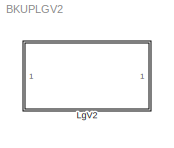
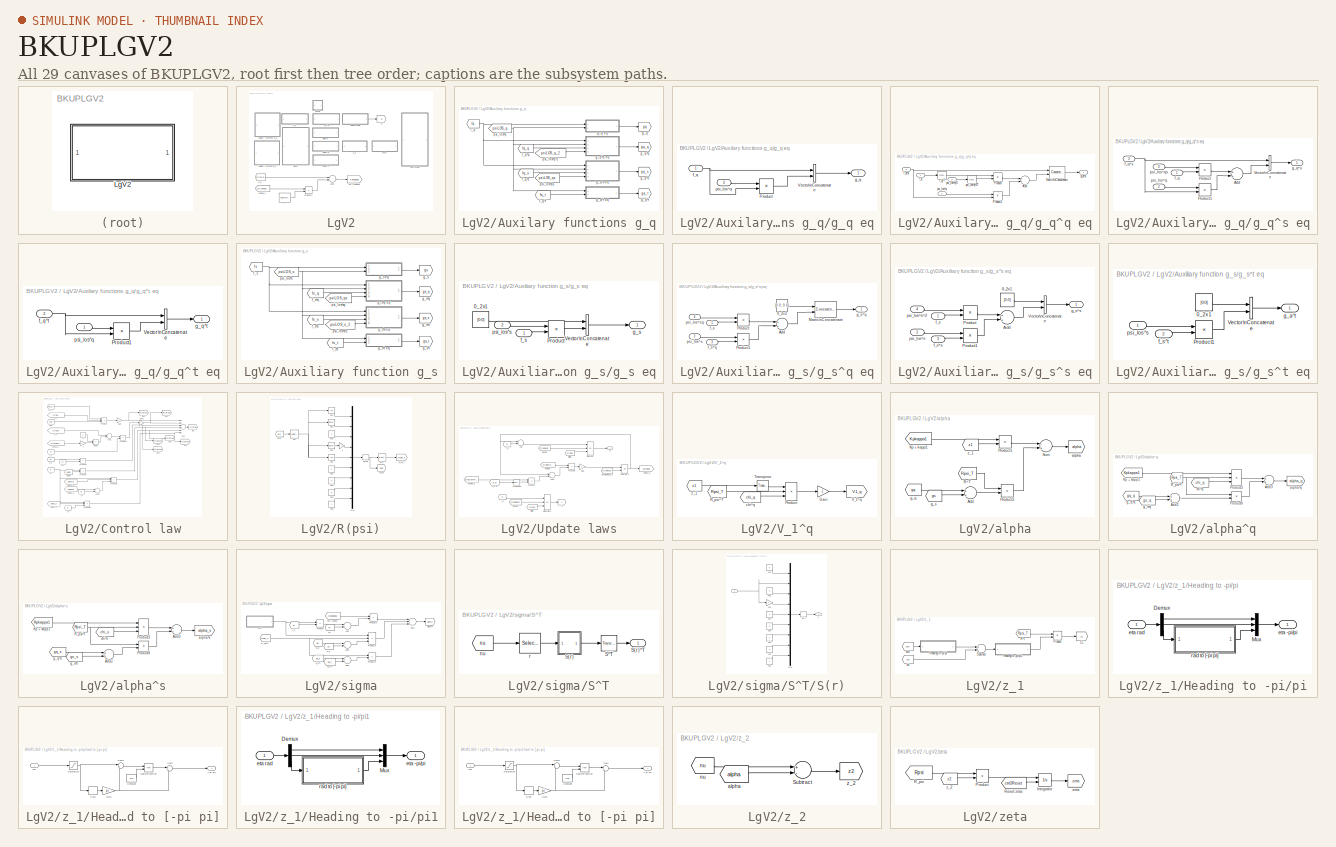
[diagram: thumbnail index - all 29 canvases of the model, root first then tree order]
MODEL BKUPLGV2
KIND model
BLOCK [SubSystem] LgV2
  FunctionWithSeparateData = off
  MaskHideContents = off
  MinAlgLoopOccurrences = off
  Opaque = off
  Ports = []
  PropExecContextOutsideSubsystem = off
  RTWSystemCode = Auto
  RequestExecContextInheritance = off
BLOCK [Sum] LgV2/Add3
  InputSameDT = off
  OutDataType = fixdt(1, 16)
  OutDataTypeMode = Inherit via internal rule
  OutDataTypeStr = Inherit: Inherit via internal rule
  OutScaling = 2^-10
  Ports = [2, 1]
  SaturateOnIntegerOverflow = off
BLOCK [SubSystem] LgV2/Auxilary functions g_q
  FunctionWithSeparateData = off
  MaskHideContents = off
  MinAlgLoopOccurrences = off
  Opaque = off
  Ports = []
  PropExecContextOutsideSubsystem = off
  RTWSystemCode = Auto
  RequestExecContextInheritance = off
BLOCK [From] LgV2/Auxilary functions g_q/f_q
  GotoTag = fq
  TagVisibility = global
BLOCK [From] LgV2/Auxilary functions g_q/f_q^q
  GotoTag = fq_q
  TagVisibility = global
BLOCK [From] LgV2/Auxilary functions g_q/f_q^s
  GotoTag = fq_s
  TagVisibility = global
BLOCK [From] LgV2/Auxilary functions g_q/f_q^t
  GotoTag = fq_t
  TagVisibility = global
BLOCK [Goto] LgV2/Auxilary functions g_q/g_q
  GotoTag = gq
  TagVisibility = global
BLOCK [SubSystem] LgV2/Auxilary functions g_q/g_q eq
  FunctionWithSeparateData = off
  MaskHideContents = off
  MinAlgLoopOccurrences = off
  Opaque = off
  Ports = [2, 1]
  PropExecContextOutsideSubsystem = off
  RTWSystemCode = Auto
  RequestExecContextInheritance = off
BLOCK [Product] LgV2/Auxilary functions g_q/g_q eq/Product
  InputSameDT = off
  Multiplication = Matrix(*)
  OutDataType = fixdt(1, 16)
  OutDataTypeMode = Inherit via internal rule
  OutDataTypeStr = Inherit: Inherit via internal rule
  OutScaling = 2^0
  Ports = [2, 1]
  SaturateOnIntegerOverflow = off
BLOCK [Concatenate] LgV2/Auxilary functions g_q/g_q eq/Vector\nConcatenate
  Mode = Vector
  Ports = [2, 1]
BLOCK [Inport] LgV2/Auxilary functions g_q/g_q eq/f_q
  IconDisplay = Port number
BLOCK [Outport] LgV2/Auxilary functions g_q/g_q eq/g_q
  IconDisplay = Port number
BLOCK [Inport] LgV2/Auxilary functions g_q/g_q eq/psi_los^q
  IconDisplay = Port number
  Port = 2
BLOCK [Goto] LgV2/Auxilary functions g_q/g_q^q
  GotoTag = gq_q
  TagVisibility = global
BLOCK [SubSystem] LgV2/Auxilary functions g_q/g_q^q eq
  FunctionWithSeparateData = off
  MaskHideContents = off
  MinAlgLoopOccurrences = off
  Opaque = off
  Ports = [4, 1]
  PropExecContextOutsideSubsystem = off
  RTWSystemCode = Auto
  RequestExecContextInheritance = off
BLOCK [Sum] LgV2/Auxilary functions g_q/g_q^q eq/Add
  InputSameDT = off
  OutDataType = fixdt(1, 16)
  OutDataTypeMode = Inherit via internal rule
  OutDataTypeStr = Inherit: Inherit via internal rule
  OutScaling = 2^-10
  Ports = [2, 1]
  SaturateOnIntegerOverflow = off
BLOCK [Concatenate] LgV2/Auxilary functions g_q/g_q^q eq/Matrix\nConcatenate
  Mode = Multidimensional array
  Ports = [2, 1]
BLOCK [Product] LgV2/Auxilary functions g_q/g_q^q eq/Product
  InputSameDT = off
  Multiplication = Matrix(*)
  OutDataType = fixdt(1, 16)
  OutDataTypeMode = Inherit via internal rule
  OutDataTypeStr = Inherit: Inherit via internal rule
  OutScaling = 2^0
  Ports = [2, 1]
  SaturateOnIntegerOverflow = off
BLOCK [Product] LgV2/Auxilary functions g_q/g_q^q eq/Product1
  InputSameDT = off
  Multiplication = Matrix(*)
  OutDataType = fixdt(1, 16)
  OutDataTypeMode = Inherit via internal rule
  OutDataTypeStr = Inherit: Inherit via internal rule
  OutScaling = 2^0
  Ports = [2, 1]
  SaturateOnIntegerOverflow = off
BLOCK [Inport] LgV2/Auxilary functions g_q/g_q^q eq/f_q
  IconDisplay = Port number
BLOCK [Reference] LgV2/Auxilary functions g_q/g_q^q eq/f_q^T  REF=dspmtrx3/Transpose
  FunctionWithSeparateData = off
  Hermitian = off
  Ports = [1, 1]
  RTWMemSecDataConstants = Inherit from model
  RTWMemSecDataInternal = Inherit from model
  RTWMemSecDataParameters = Inherit from model
  RTWMemSecFuncExecute = Inherit from model
  RTWMemSecFuncInitTerm = Inherit from model
  ShowPortLabels = FromPortIcon
  SourceBlock = dspmtrx3/Transpose
  SourceType = Transpose
  SystemSampleTime = -1
  overflowFlag = off
BLOCK [Inport] LgV2/Auxilary functions g_q/g_q^q eq/f_q^q
  IconDisplay = Port number
  Port = 3
BLOCK [Outport] LgV2/Auxilary functions g_q/g_q^q eq/g_q^q
  IconDisplay = Port number
BLOCK [Inport] LgV2/Auxilary functions g_q/g_q^q eq/psi_los^q
  IconDisplay = Port number
  Port = 2
BLOCK [Inport] LgV2/Auxilary functions g_q/g_q^q eq/psi_los^q^2
  IconDisplay = Port number
  Port = 4
BLOCK [Reference] LgV2/Auxilary functions g_q/g_q^q eq/psi_los^q^2T  REF=dspmtrx3/Transpose
  FunctionWithSeparateData = off
  Hermitian = off
  Ports = [1, 1]
  RTWMemSecDataConstants = Inherit from model
  RTWMemSecDataInternal = Inherit from model
  RTWMemSecDataParameters = Inherit from model
  RTWMemSecFuncExecute = Inherit from model
  RTWMemSecFuncInitTerm = Inherit from model
  ShowPortLabels = FromPortIcon
  SourceBlock = dspmtrx3/Transpose
  SourceType = Transpose
  SystemSampleTime = -1
  overflowFlag = off
BLOCK [Goto] LgV2/Auxilary functions g_q/g_q^s
  GotoTag = gq_s
  TagVisibility = global
BLOCK [SubSystem] LgV2/Auxilary functions g_q/g_q^s eq
  FunctionWithSeparateData = off
  MaskHideContents = off
  MinAlgLoopOccurrences = off
  Opaque = off
  Ports = [4, 1]
  PropExecContextOutsideSubsystem = off
  RTWSystemCode = Auto
  RequestExecContextInheritance = off
BLOCK [Sum] LgV2/Auxilary functions g_q/g_q^s eq/Add
  InputSameDT = off
  OutDataType = fixdt(1, 16)
  OutDataTypeMode = Inherit via internal rule
  OutDataTypeStr = Inherit: Inherit via internal rule
  OutScaling = 2^-10
  Ports = [2, 1]
  SaturateOnIntegerOverflow = off
BLOCK [Product] LgV2/Auxilary functions g_q/g_q^s eq/Product
  InputSameDT = off
  Multiplication = Matrix(*)
  OutDataType = fixdt(1, 16)
  OutDataTypeMode = Inherit via internal rule
  OutDataTypeStr = Inherit: Inherit via internal rule
  OutScaling = 2^0
  Ports = [2, 1]
  SaturateOnIntegerOverflow = off
BLOCK [Product] LgV2/Auxilary functions g_q/g_q^s eq/Product1
  InputSameDT = off
  Multiplication = Matrix(*)
  OutDataType = fixdt(1, 16)
  OutDataTypeMode = Inherit via internal rule
  OutDataTypeStr = Inherit: Inherit via internal rule
  OutScaling = 2^0
  Ports = [2, 1]
  SaturateOnIntegerOverflow = off
BLOCK [Concatenate] LgV2/Auxilary functions g_q/g_q^s eq/Vector\nConcatenate
  Mode = Vector
  Ports = [2, 1]
BLOCK [Inport] LgV2/Auxilary functions g_q/g_q^s eq/f_q
  IconDisplay = Port number
BLOCK [Inport] LgV2/Auxilary functions g_q/g_q^s eq/f_q^s
  IconDisplay = Port number
  Port = 3
BLOCK [Outport] LgV2/Auxilary functions g_q/g_q^s eq/g_q^s
  IconDisplay = Port number
BLOCK [Inport] LgV2/Auxilary functions g_q/g_q^s eq/psi_los^q
  IconDisplay = Port number
  Port = 2
BLOCK [Inport] LgV2/Auxilary functions g_q/g_q^s eq/psi_los^qs
  IconDisplay = Port number
  Port = 4
BLOCK [Goto] LgV2/Auxilary functions g_q/g_q^t
  GotoTag = gq_t
  TagVisibility = global
BLOCK [SubSystem] LgV2/Auxilary functions g_q/g_q^t eq
  FunctionWithSeparateData = off
  MaskHideContents = off
  MinAlgLoopOccurrences = off
  Opaque = off
  Ports = [2, 1]
  PropExecContextOutsideSubsystem = off
  RTWSystemCode = Auto
  RequestExecContextInheritance = off
BLOCK [Product] LgV2/Auxilary functions g_q/g_q^t eq/Product1
  InputSameDT = off
  Multiplication = Matrix(*)
  OutDataType = fixdt(1, 16)
  OutDataTypeMode = Inherit via internal rule
  OutDataTypeStr = Inherit: Inherit via internal rule
  OutScaling = 2^0
  Ports = [2, 1]
  SaturateOnIntegerOverflow = off
BLOCK [Concatenate] LgV2/Auxilary functions g_q/g_q^t eq/Vector\nConcatenate
  Mode = Vector
  Ports = [2, 1]
BLOCK [Inport] LgV2/Auxilary functions g_q/g_q^t eq/f_q^t
  IconDisplay = Port number
  Port = 2
BLOCK [Outport] LgV2/Auxilary functions g_q/g_q^t eq/g_q^t
  IconDisplay = Port number
BLOCK [Inport] LgV2/Auxilary functions g_q/g_q^t eq/psi_los^q
  IconDisplay = Port number
BLOCK [From] LgV2/Auxilary functions g_q/psi_los^q
  GotoTag = psiLOS_q
  TagVisibility = global
BLOCK [From] LgV2/Auxilary functions g_q/psi_los^q^2
  GotoTag = psiLOS_q_2
  TagVisibility = global
BLOCK [From] LgV2/Auxilary functions g_q/psi_los^qs
  GotoTag = psiLOS_qs
  TagVisibility = global
BLOCK [SubSystem] LgV2/Auxiliary function g_s
  FunctionWithSeparateData = off
  MaskHideContents = off
  MinAlgLoopOccurrences = off
  Opaque = off
  Ports = []
  PropExecContextOutsideSubsystem = off
  RTWSystemCode = Auto
  RequestExecContextInheritance = off
BLOCK [From] LgV2/Auxiliary function g_s/f_s
  GotoTag = fs
  TagVisibility = global
BLOCK [From] LgV2/Auxiliary function g_s/f_s^q
  GotoTag = fs_q
  TagVisibility = global
BLOCK [From] LgV2/Auxiliary function g_s/f_s^s
  GotoTag = fs_s
  TagVisibility = global
BLOCK [From] LgV2/Auxiliary function g_s/f_s^t
  GotoTag = fs_t
  TagVisibility = global
BLOCK [Goto] LgV2/Auxiliary function g_s/g_s
  GotoTag = gs
  TagVisibility = global
BLOCK [SubSystem] LgV2/Auxiliary function g_s/g_s eq
  FunctionWithSeparateData = off
  MaskHideContents = off
  MinAlgLoopOccurrences = off
  Opaque = off
  Ports = [2, 1]
  PropExecContextOutsideSubsystem = off
  RTWSystemCode = Auto
  RequestExecContextInheritance = off
BLOCK [Constant] LgV2/Auxiliary function g_s/g_s eq/0_2x1
  OutDataType = fixdt(1, 16)
  OutScaling = 2^0
  Value = [0;0]
  VectorParams1D = off
BLOCK [Product] LgV2/Auxiliary function g_s/g_s eq/Product
  InputSameDT = off
  Multiplication = Matrix(*)
  OutDataType = fixdt(1, 16)
  OutDataTypeMode = Inherit via internal rule
  OutDataTypeStr = Inherit: Inherit via internal rule
  OutScaling = 2^0
  Ports = [2, 1]
  SaturateOnIntegerOverflow = off
BLOCK [Concatenate] LgV2/Auxiliary function g_s/g_s eq/Vector\nConcatenate
  Mode = Vector
  Ports = [2, 1]
BLOCK [Inport] LgV2/Auxiliary function g_s/g_s eq/f_s
  IconDisplay = Port number
BLOCK [Outport] LgV2/Auxiliary function g_s/g_s eq/g_s
  IconDisplay = Port number
BLOCK [Inport] LgV2/Auxiliary function g_s/g_s eq/psi_los^s
  IconDisplay = Port number
  Port = 2
BLOCK [Goto] LgV2/Auxiliary function g_s/g_s^q
  GotoTag = gs_q
  TagVisibility = global
BLOCK [SubSystem] LgV2/Auxiliary function g_s/g_s^q eq
  FunctionWithSeparateData = off
  MaskHideContents = off
  MinAlgLoopOccurrences = off
  Opaque = off
  Ports = [4, 1]
  PropExecContextOutsideSubsystem = off
  RTWSystemCode = Auto
  RequestExecContextInheritance = off
BLOCK [Constant] LgV2/Auxiliary function g_s/g_s^q eq/0_2x2
  OutDataType = fixdt(1, 16)
  OutScaling = 2^0
  Value = [0 0; 0 0]
  VectorParams1D = off
BLOCK [Sum] LgV2/Auxiliary function g_s/g_s^q eq/Add
  InputSameDT = off
  OutDataType = fixdt(1, 16)
  OutDataTypeMode = Inherit via internal rule
  OutDataTypeStr = Inherit: Inherit via internal rule
  OutScaling = 2^-10
  Ports = [2, 1]
  SaturateOnIntegerOverflow = off
BLOCK [Concatenate] LgV2/Auxiliary function g_s/g_s^q eq/Matrix\nConcatenate
  Mode = Multidimensional array
  Ports = [2, 1]
BLOCK [Product] LgV2/Auxiliary function g_s/g_s^q eq/Product
  InputSameDT = off
  OutDataType = fixdt(1, 16)
  OutDataTypeMode = Inherit via internal rule
  OutDataTypeStr = Inherit: Inherit via internal rule
  OutScaling = 2^0
  Ports = [2, 1]
  SaturateOnIntegerOverflow = off
BLOCK [Product] LgV2/Auxiliary function g_s/g_s^q eq/Product1
  InputSameDT = off
  OutDataType = fixdt(1, 16)
  OutDataTypeMode = Inherit via internal rule
  OutDataTypeStr = Inherit: Inherit via internal rule
  OutScaling = 2^0
  Ports = [2, 1]
  SaturateOnIntegerOverflow = off
BLOCK [Inport] LgV2/Auxiliary function g_s/g_s^q eq/f_s
  IconDisplay = Port number
BLOCK [Inport] LgV2/Auxiliary function g_s/g_s^q eq/f_s^q
  IconDisplay = Port number
  Port = 3
BLOCK [Outport] LgV2/Auxiliary function g_s/g_s^q eq/g_s^q
  IconDisplay = Port number
BLOCK [Inport] LgV2/Auxiliary function g_s/g_s^q eq/psi_los^s
  IconDisplay = Port number
  Port = 2
BLOCK [Inport] LgV2/Auxiliary function g_s/g_s^q eq/psi_los^sq
  IconDisplay = Port number
  Port = 4
BLOCK [Goto] LgV2/Auxiliary function g_s/g_s^s
  GotoTag = gs_s
  TagVisibility = global
BLOCK [SubSystem] LgV2/Auxiliary function g_s/g_s^s eq
  FunctionWithSeparateData = off
  MaskHideContents = off
  MinAlgLoopOccurrences = off
  Opaque = off
  Ports = [4, 1]
  PropExecContextOutsideSubsystem = off
  RTWSystemCode = Auto
  RequestExecContextInheritance = off
BLOCK [Constant] LgV2/Auxiliary function g_s/g_s^s eq/0_2x1
  OutDataType = fixdt(1, 16)
  OutScaling = 2^0
  Value = [0;0]
  VectorParams1D = off
BLOCK [Sum] LgV2/Auxiliary function g_s/g_s^s eq/Add
  InputSameDT = off
  OutDataType = fixdt(1, 16)
  OutDataTypeMode = Inherit via internal rule
  OutDataTypeStr = Inherit: Inherit via internal rule
  OutScaling = 2^-10
  Ports = [2, 1]
  SaturateOnIntegerOverflow = off
BLOCK [Product] LgV2/Auxiliary function g_s/g_s^s eq/Product
  InputSameDT = off
  OutDataType = fixdt(1, 16)
  OutDataTypeMode = Inherit via internal rule
  OutDataTypeStr = Inherit: Inherit via internal rule
  OutScaling = 2^0
  Ports = [2, 1]
  SaturateOnIntegerOverflow = off
BLOCK [Product] LgV2/Auxiliary function g_s/g_s^s eq/Product1
  InputSameDT = off
  OutDataType = fixdt(1, 16)
  OutDataTypeMode = Inherit via internal rule
  OutDataTypeStr = Inherit: Inherit via internal rule
  OutScaling = 2^0
  Ports = [2, 1]
  SaturateOnIntegerOverflow = off
BLOCK [Concatenate] LgV2/Auxiliary function g_s/g_s^s eq/Vector\nConcatenate
  Mode = Vector
  Ports = [2, 1]
BLOCK [Inport] LgV2/Auxiliary function g_s/g_s^s eq/f_s
  IconDisplay = Port number
BLOCK [Inport] LgV2/Auxiliary function g_s/g_s^s eq/f_s^s
  IconDisplay = Port number
  Port = 3
BLOCK [Outport] LgV2/Auxiliary function g_s/g_s^s eq/g_s^s
  IconDisplay = Port number
BLOCK [Inport] LgV2/Auxiliary function g_s/g_s^s eq/psi_los^s
  IconDisplay = Port number
  Port = 2
BLOCK [Inport] LgV2/Auxiliary function g_s/g_s^s eq/psi_los^s^2
  IconDisplay = Port number
  Port = 4
BLOCK [Goto] LgV2/Auxiliary function g_s/g_s^t
  GotoTag = gs_t
  TagVisibility = global
BLOCK [SubSystem] LgV2/Auxiliary function g_s/g_s^t eq
  FunctionWithSeparateData = off
  MaskHideContents = off
  MinAlgLoopOccurrences = off
  Opaque = off
  Ports = [2, 1]
  PropExecContextOutsideSubsystem = off
  RTWSystemCode = Auto
  RequestExecContextInheritance = off
BLOCK [Constant] LgV2/Auxiliary function g_s/g_s^t eq/0_2x1
  OutDataType = fixdt(1, 16)
  OutScaling = 2^0
  Value = [0;0]
  VectorParams1D = off
BLOCK [Product] LgV2/Auxiliary function g_s/g_s^t eq/Product1
  InputSameDT = off
  Multiplication = Matrix(*)
  OutDataType = fixdt(1, 16)
  OutDataTypeMode = Inherit via internal rule
  OutDataTypeStr = Inherit: Inherit via internal rule
  OutScaling = 2^0
  Ports = [2, 1]
  SaturateOnIntegerOverflow = off
BLOCK [Concatenate] LgV2/Auxiliary function g_s/g_s^t eq/Vector\nConcatenate
  Mode = Vector
  Ports = [2, 1]
BLOCK [Inport] LgV2/Auxiliary function g_s/g_s^t eq/f_s^t
  IconDisplay = Port number
  Port = 2
BLOCK [Outport] LgV2/Auxiliary function g_s/g_s^t eq/g_a^t
  IconDisplay = Port number
BLOCK [Inport] LgV2/Auxiliary function g_s/g_s^t eq/psi_los^s
  IconDisplay = Port number
BLOCK [From] LgV2/Auxiliary function g_s/psi_los^s
  GotoTag = psiLOS_s
  TagVisibility = global
BLOCK [From] LgV2/Auxiliary function g_s/psi_los^s^2
  GotoTag = psiLOS_s_2
  TagVisibility = global
BLOCK [From] LgV2/Auxiliary function g_s/psi_los^sq
  GotoTag = psiLOS_qs
  TagVisibility = global
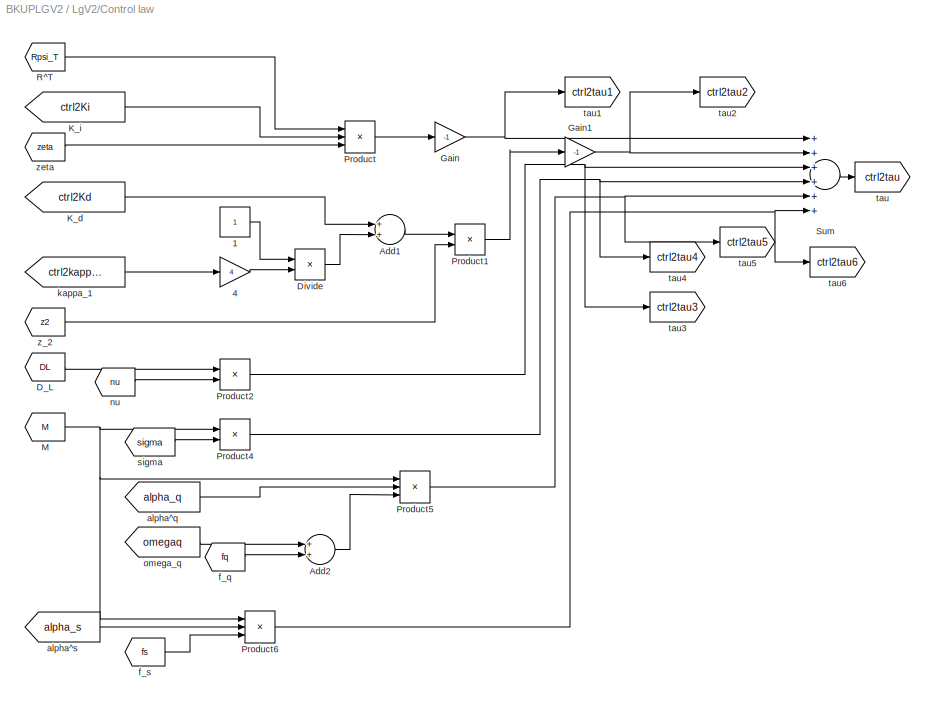
BLOCK [SubSystem] LgV2/Control law
  FunctionWithSeparateData = off
  MaskHideContents = off
  MinAlgLoopOccurrences = off
  Opaque = off
  Ports = []
  PropExecContextOutsideSubsystem = off
  RTWSystemCode = Auto
  RequestExecContextInheritance = off
BLOCK [Constant] LgV2/Control law/1
  OutDataType = fixdt(1, 16)
  OutScaling = 2^0
BLOCK [Gain] LgV2/Control law/4
  Gain = 4
  OutDataType = fixdt(1, 16)
  OutDataTypeMode = Inherit via internal rule
  OutDataTypeStr = Inherit: Inherit via internal rule
  OutScaling = 2^0
  ParamDataTypeStr = Inherit: Inherit via internal rule
  ParameterDataType = fixdt(1, 16)
  ParameterDataTypeMode = Inherit via internal rule
  ParameterScaling = 2^0
  SaturateOnIntegerOverflow = off
BLOCK [Sum] LgV2/Control law/Add1
  InputSameDT = off
  OutDataType = fixdt(1, 16)
  OutDataTypeMode = Inherit via internal rule
  OutDataTypeStr = Inherit: Inherit via internal rule
  OutScaling = 2^-10
  Ports = [2, 1]
  SaturateOnIntegerOverflow = off
BLOCK [Sum] LgV2/Control law/Add2
  InputSameDT = off
  OutDataType = fixdt(1, 16)
  OutDataTypeMode = Inherit via internal rule
  OutDataTypeStr = Inherit: Inherit via internal rule
  OutScaling = 2^-10
  Ports = [2, 1]
  SaturateOnIntegerOverflow = off
BLOCK [From] LgV2/Control law/D_L
  GotoTag = DL
  TagVisibility = global
BLOCK [Product] LgV2/Control law/Divide
  InputSameDT = off
  Inputs = */
  OutDataType = fixdt(1, 16)
  OutDataTypeMode = Inherit via internal rule
  OutDataTypeStr = Inherit: Inherit via internal rule
  OutScaling = 2^-10
  Ports = [2, 1]
  RndMeth = Floor
  SaturateOnIntegerOverflow = off
BLOCK [Gain] LgV2/Control law/Gain
  Gain = -1
  OutDataType = fixdt(1, 16)
  OutDataTypeMode = Inherit via internal rule
  OutDataTypeStr = Inherit: Inherit via internal rule
  OutScaling = 2^0
  ParamDataTypeStr = Inherit: Inherit via internal rule
  ParameterDataType = fixdt(1, 16)
  ParameterDataTypeMode = Inherit via internal rule
  ParameterScaling = 2^0
  SaturateOnIntegerOverflow = off
BLOCK [Gain] LgV2/Control law/Gain1
  Gain = -1
  OutDataType = fixdt(1, 16)
  OutDataTypeMode = Inherit via internal rule
  OutDataTypeStr = Inherit: Inherit via internal rule
  OutScaling = 2^0
  ParamDataTypeStr = Inherit: Inherit via internal rule
  ParameterDataType = fixdt(1, 16)
  ParameterDataTypeMode = Inherit via internal rule
  ParameterScaling = 2^0
  SaturateOnIntegerOverflow = off
BLOCK [From] LgV2/Control law/K_d
  GotoTag = ctrl2Kd
  TagVisibility = global
BLOCK [From] LgV2/Control law/K_i
  GotoTag = ctrl2Ki
  TagVisibility = global
BLOCK [From] LgV2/Control law/M
  GotoTag = M
  TagVisibility = global
BLOCK [Product] LgV2/Control law/Product
  InputSameDT = off
  Inputs = 3
  Multiplication = Matrix(*)
  OutDataType = fixdt(1, 16)
  OutDataTypeMode = Inherit via internal rule
  OutDataTypeStr = Inherit: Inherit via internal rule
  OutScaling = 2^0
  Ports = [3, 1]
  SaturateOnIntegerOverflow = off
BLOCK [Product] LgV2/Control law/Product1
  InputSameDT = off
  Multiplication = Matrix(*)
  OutDataType = fixdt(1, 16)
  OutDataTypeMode = Inherit via internal rule
  OutDataTypeStr = Inherit: Inherit via internal rule
  OutScaling = 2^0
  Ports = [2, 1]
  SaturateOnIntegerOverflow = off
BLOCK [Product] LgV2/Control law/Product2
  InputSameDT = off
  Multiplication = Matrix(*)
  OutDataType = fixdt(1, 16)
  OutDataTypeMode = Inherit via internal rule
  OutDataTypeStr = Inherit: Inherit via internal rule
  OutScaling = 2^0
  Ports = [2, 1]
  SaturateOnIntegerOverflow = off
BLOCK [Product] LgV2/Control law/Product4
  InputSameDT = off
  Multiplication = Matrix(*)
  OutDataType = fixdt(1, 16)
  OutDataTypeMode = Inherit via internal rule
  OutDataTypeStr = Inherit: Inherit via internal rule
  OutScaling = 2^0
  Ports = [2, 1]
  SaturateOnIntegerOverflow = off
BLOCK [Product] LgV2/Control law/Product5
  InputSameDT = off
  Inputs = 3
  Multiplication = Matrix(*)
  OutDataType = fixdt(1, 16)
  OutDataTypeMode = Inherit via internal rule
  OutDataTypeStr = Inherit: Inherit via internal rule
  OutScaling = 2^0
  Ports = [3, 1]
  SaturateOnIntegerOverflow = off
BLOCK [Product] LgV2/Control law/Product6
  InputSameDT = off
  Inputs = 3
  Multiplication = Matrix(*)
  OutDataType = fixdt(1, 16)
  OutDataTypeMode = Inherit via internal rule
  OutDataTypeStr = Inherit: Inherit via internal rule
  OutScaling = 2^0
  Ports = [3, 1]
  SaturateOnIntegerOverflow = off
BLOCK [From] LgV2/Control law/R^T
  GotoTag = Rpsi_T
  TagVisibility = global
BLOCK [Sum] LgV2/Control law/Sum
  InputSameDT = off
  Inputs = ++++++
  OutDataType = fixdt(1, 16)
  OutDataTypeMode = Inherit via internal rule
  OutDataTypeStr = Inherit: Inherit via internal rule
  OutScaling = 2^-10
  Ports = [6, 1]
  SaturateOnIntegerOverflow = off
BLOCK [From] LgV2/Control law/alpha^q
  GotoTag = alpha_q
  TagVisibility = global
BLOCK [From] LgV2/Control law/alpha^s
  GotoTag = alpha_s
  TagVisibility = global
BLOCK [From] LgV2/Control law/f_q
  GotoTag = fq
  TagVisibility = global
BLOCK [From] LgV2/Control law/f_s
  GotoTag = fs
  TagVisibility = global
BLOCK [From] LgV2/Control law/kappa_1
  GotoTag = ctrl2kappa1
  TagVisibility = global
BLOCK [From] LgV2/Control law/nu
  GotoTag = nu
  TagVisibility = global
BLOCK [From] LgV2/Control law/omega_q
  GotoTag = omegaq
  TagVisibility = global
BLOCK [From] LgV2/Control law/sigma
  GotoTag = sigma
  TagVisibility = global
BLOCK [Goto] LgV2/Control law/tau
  GotoTag = ctrl2tau
  TagVisibility = global
BLOCK [Goto] LgV2/Control law/tau1
  GotoTag = ctrl2tau1
  TagVisibility = global
BLOCK [Goto] LgV2/Control law/tau2
  GotoTag = ctrl2tau2
  TagVisibility = global
BLOCK [Goto] LgV2/Control law/tau3
  GotoTag = ctrl2tau3
  TagVisibility = global
BLOCK [Goto] LgV2/Control law/tau4
  GotoTag = ctrl2tau4
  TagVisibility = global
BLOCK [Goto] LgV2/Control law/tau5
  GotoTag = ctrl2tau5
  TagVisibility = global
BLOCK [Goto] LgV2/Control law/tau6
  GotoTag = ctrl2tau6
  TagVisibility = global
BLOCK [From] LgV2/Control law/z_2
  GotoTag = z2
  TagVisibility = global
BLOCK [From] LgV2/Control law/zeta
  GotoTag = zeta
  TagVisibility = global
BLOCK [Reference] LgV2/I  REF=dspmtrx3/Constant Diagonal\nMatrix
  FunctionWithSeparateData = off
  Ports = [0, 1]
  RTWMemSecDataConstants = Inherit from model
  RTWMemSecDataInternal = Inherit from model
  RTWMemSecDataParameters = Inherit from model
  RTWMemSecFuncExecute = Inherit from model
  RTWMemSecFuncInitTerm = Inherit from model
  ShowPortLabels = none
  SourceBlock = dspmtrx3/Constant Diagonal\nMatrix
  SourceType = Constant Diagonal Matrix
  SystemSampleTime = -1
  additionalParams = off
  allowOverrides = on
  dataType = Inherit from 'Constant(s) along diagonal'
  fracBitsMode = Best precision
  frame = off
  isSigned = on
  numFracBits = 15
  q = [1 1 1 ]
  udDataType = sfix(16)
  wordLen = 16
BLOCK [From] LgV2/K_p
  GotoTag = ctrl2Kp
  TagVisibility = global
BLOCK [Goto] LgV2/Kp + kappa1
  GotoTag = Kpkappa1
  TagVisibility = global
BLOCK [Product] LgV2/Product1
  InputSameDT = off
  OutDataType = fixdt(1, 16)
  OutDataTypeMode = Inherit via internal rule
  OutDataTypeStr = Inherit: Inherit via internal rule
  OutScaling = 2^0
  Ports = [2, 1]
  SaturateOnIntegerOverflow = off
BLOCK [SubSystem] LgV2/R(psi)
  FunctionWithSeparateData = off
  MaskHideContents = off
  MinAlgLoopOccurrences = off
  Opaque = off
  Ports = []
  PropExecContextOutsideSubsystem = off
  RTWSystemCode = Auto
  RequestExecContextInheritance = off
BLOCK [Gain] LgV2/R(psi)/-1
  Gain = -1
  OutDataType = fixdt(1, 16)
  OutDataTypeMode = Inherit via internal rule
  OutDataTypeStr = Inherit: Inherit via internal rule
  OutScaling = 2^0
  ParamDataTypeStr = Inherit: Inherit via internal rule
  ParameterDataType = fixdt(1, 16)
  ParameterDataTypeMode = Inherit via internal rule
  ParameterScaling = 2^0
  SaturateOnIntegerOverflow = off
BLOCK [Mux] LgV2/R(psi)/Mux
  DisplayOption = bar
  Inputs = 9
  Ports = [9, 1]
BLOCK [Reshape] LgV2/R(psi)/R(psi)
  OutputDimensionality = Customize
  OutputDimensions = [3,3]
  Ports = [1, 1]
BLOCK [Trigonometry] LgV2/R(psi)/R11
  Operator = cos
  Ports = [1, 1]
BLOCK [Trigonometry] LgV2/R(psi)/R12
  Ports = [1, 1]
BLOCK [Constant] LgV2/R(psi)/R13
  Value = 0
BLOCK [Trigonometry] LgV2/R(psi)/R21
  Ports = [1, 1]
BLOCK [Trigonometry] LgV2/R(psi)/R22
  Operator = cos
  Ports = [1, 1]
BLOCK [Constant] LgV2/R(psi)/R23
  Value = 0
BLOCK [Constant] LgV2/R(psi)/R31
  Value = 0
BLOCK [Constant] LgV2/R(psi)/R32
  Value = 0
BLOCK [Constant] LgV2/R(psi)/R33
BLOCK [Reference] LgV2/R(psi)/R^T  REF=dspmtrx3/Transpose
  FunctionWithSeparateData = off
  Hermitian = off
  Ports = [1, 1]
  RTWMemSecDataConstants = Inherit from model
  RTWMemSecDataInternal = Inherit from model
  RTWMemSecDataParameters = Inherit from model
  RTWMemSecFuncExecute = Inherit from model
  RTWMemSecFuncInitTerm = Inherit from model
  ShowPortLabels = FromPortIcon
  SourceBlock = dspmtrx3/Transpose
  SourceType = Transpose
  SystemSampleTime = -1
  overflowFlag = off
BLOCK [Goto] LgV2/R(psi)/R_psi
  GotoTag = Rpsi
  TagVisibility = global
BLOCK [Goto] LgV2/R(psi)/R_psi_T
  GotoTag = Rpsi_T
  TagVisibility = global
BLOCK [From] LgV2/R(psi)/eta
  GotoTag = eta
  TagVisibility = global
BLOCK [Selector] LgV2/R(psi)/psi
  IndexOptions = Index vector (dialog)
  Indices = [3]
  InputPortWidth = 3
  OutputSizes = 1
  Ports = [1, 1]
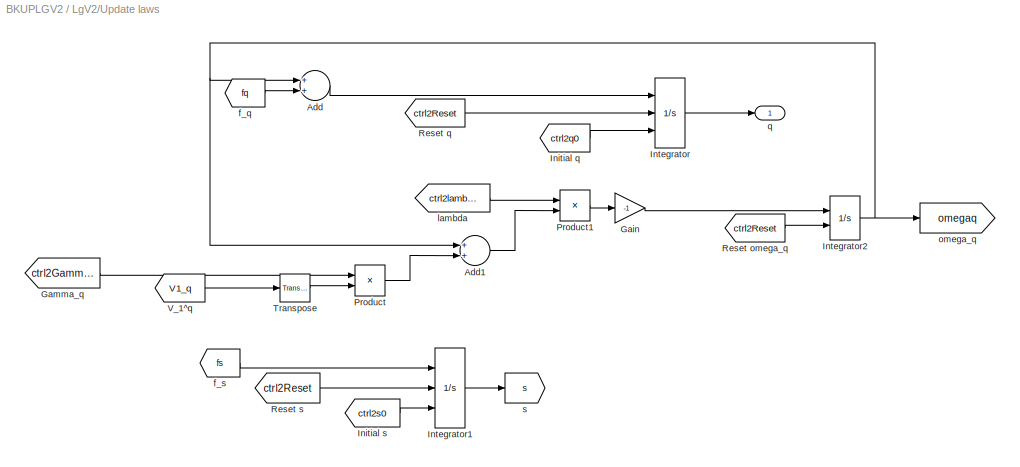
BLOCK [SubSystem] LgV2/Update laws
  FunctionWithSeparateData = off
  MaskHideContents = off
  MinAlgLoopOccurrences = off
  Opaque = off
  Ports = [0, 1]
  PropExecContextOutsideSubsystem = off
  RTWSystemCode = Auto
  RequestExecContextInheritance = off
BLOCK [Sum] LgV2/Update laws/Add
  InputSameDT = off
  OutDataType = fixdt(1, 16)
  OutDataTypeMode = Inherit via internal rule
  OutDataTypeStr = Inherit: Inherit via internal rule
  OutScaling = 2^-10
  Ports = [2, 1]
  SaturateOnIntegerOverflow = off
BLOCK [Sum] LgV2/Update laws/Add1
  InputSameDT = off
  OutDataType = fixdt(1, 16)
  OutDataTypeMode = Inherit via internal rule
  OutDataTypeStr = Inherit: Inherit via internal rule
  OutScaling = 2^-10
  Ports = [2, 1]
  SaturateOnIntegerOverflow = off
BLOCK [Gain] LgV2/Update laws/Gain
  Gain = -1
  OutDataType = fixdt(1, 16)
  OutDataTypeMode = Inherit via internal rule
  OutDataTypeStr = Inherit: Inherit via internal rule
  OutScaling = 2^0
  ParamDataTypeStr = Inherit: Inherit via internal rule
  ParameterDataType = fixdt(1, 16)
  ParameterDataTypeMode = Inherit via internal rule
  ParameterScaling = 2^0
  SaturateOnIntegerOverflow = off
BLOCK [From] LgV2/Update laws/Gamma_q
  GotoTag = ctrl2Gammaq
  TagVisibility = global
BLOCK [From] LgV2/Update laws/Initial q
  GotoTag = ctrl2q0
  TagVisibility = global
BLOCK [From] LgV2/Update laws/Initial s
  GotoTag = ctrl2s0
  TagVisibility = global
BLOCK [Integrator] LgV2/Update laws/Integrator
  ExternalReset = level
  InitialConditionSource = external
  Ports = [3, 1]
BLOCK [Integrator] LgV2/Update laws/Integrator1
  ExternalReset = level
  InitialCondition = 250
  InitialConditionSource = external
  Ports = [3, 1]
BLOCK [Integrator] LgV2/Update laws/Integrator2
  ExternalReset = level
  Ports = [2, 1]
BLOCK [Product] LgV2/Update laws/Product
  InputSameDT = off
  Multiplication = Matrix(*)
  OutDataType = fixdt(1, 16)
  OutDataTypeMode = Inherit via internal rule
  OutDataTypeStr = Inherit: Inherit via internal rule
  OutScaling = 2^0
  Ports = [2, 1]
  SaturateOnIntegerOverflow = off
BLOCK [Product] LgV2/Update laws/Product1
  InputSameDT = off
  OutDataType = fixdt(1, 16)
  OutDataTypeMode = Inherit via internal rule
  OutDataTypeStr = Inherit: Inherit via internal rule
  OutScaling = 2^0
  Ports = [2, 1]
  SaturateOnIntegerOverflow = off
BLOCK [From] LgV2/Update laws/Reset omega_q
  GotoTag = ctrl2Reset
  TagVisibility = global
BLOCK [From] LgV2/Update laws/Reset q
  GotoTag = ctrl2Reset
  TagVisibility = global
BLOCK [From] LgV2/Update laws/Reset s
  GotoTag = ctrl2Reset
  TagVisibility = global
BLOCK [Reference] LgV2/Update laws/Transpose  REF=dspmtrx3/Transpose
  FunctionWithSeparateData = off
  Hermitian = off
  Ports = [1, 1]
  RTWMemSecDataConstants = Inherit from model
  RTWMemSecDataInternal = Inherit from model
  RTWMemSecDataParameters = Inherit from model
  RTWMemSecFuncExecute = Inherit from model
  RTWMemSecFuncInitTerm = Inherit from model
  ShowPortLabels = FromPortIcon
  SourceBlock = dspmtrx3/Transpose
  SourceType = Transpose
  SystemSampleTime = -1
  overflowFlag = off
BLOCK [From] LgV2/Update laws/V_1^q
  GotoTag = V1_q
  TagVisibility = global
BLOCK [From] LgV2/Update laws/f_q
  GotoTag = fq
  TagVisibility = global
BLOCK [From] LgV2/Update laws/f_s
  GotoTag = fs
  TagVisibility = global
BLOCK [From] LgV2/Update laws/lambda
  GotoTag = ctrl2lambdaq
  TagVisibility = global
BLOCK [Goto] LgV2/Update laws/omega_q
  GotoTag = omegaq
  TagVisibility = global
BLOCK [Outport] LgV2/Update laws/q
  IconDisplay = Port number
  OutDataType = fixdt(1, 16)
  OutScaling = 2^0
  PortDimensions = 2
BLOCK [Goto] LgV2/Update laws/s
  GotoTag = s
  TagVisibility = global
BLOCK [SubSystem] LgV2/V_1^q
  FunctionWithSeparateData = off
  MaskHideContents = off
  MinAlgLoopOccurrences = off
  Opaque = off
  Ports = []
  PropExecContextOutsideSubsystem = off
  RTWSystemCode = Auto
  RequestExecContextInheritance = off
BLOCK [Gain] LgV2/V_1^q/Gain
  Gain = -1
  OutDataType = fixdt(1, 16)
  OutDataTypeMode = Inherit via internal rule
  OutDataTypeStr = Inherit: Inherit via internal rule
  OutScaling = 2^0
  ParamDataTypeStr = Inherit: Inherit via internal rule
  ParameterDataType = fixdt(1, 16)
  ParameterDataTypeMode = Inherit via internal rule
  ParameterScaling = 2^0
  SaturateOnIntegerOverflow = off
BLOCK [Product] LgV2/V_1^q/Product
  InputSameDT = off
  Inputs = 3
  Multiplication = Matrix(*)
  OutDataType = fixdt(1, 16)
  OutDataTypeMode = Inherit via internal rule
  OutDataTypeStr = Inherit: Inherit via internal rule
  OutScaling = 2^0
  Ports = [3, 1]
  SaturateOnIntegerOverflow = off
BLOCK [From] LgV2/V_1^q/R_psi^T
  GotoTag = Rpsi_T
  TagVisibility = global
BLOCK [Reference] LgV2/V_1^q/Transpose  REF=dspmtrx3/Transpose
  FunctionWithSeparateData = off
  Hermitian = off
  Ports = [1, 1]
  RTWMemSecDataConstants = Inherit from model
  RTWMemSecDataInternal = Inherit from model
  RTWMemSecDataParameters = Inherit from model
  RTWMemSecFuncExecute = Inherit from model
  RTWMemSecFuncInitTerm = Inherit from model
  ShowPortLabels = FromPortIcon
  SourceBlock = dspmtrx3/Transpose
  SourceType = Transpose
  SystemSampleTime = -1
  overflowFlag = off
BLOCK [Goto] LgV2/V_1^q/V_1^q
  GotoTag = V1_q
  TagVisibility = global
BLOCK [From] LgV2/V_1^q/chi^q
  GotoTag = chi_q
  TagVisibility = global
BLOCK [From] LgV2/V_1^q/z_1
  GotoTag = z1
  TagVisibility = global
BLOCK [SubSystem] LgV2/alpha
  FunctionWithSeparateData = off
  MaskHideContents = off
  MinAlgLoopOccurrences = off
  Opaque = off
  Ports = []
  PropExecContextOutsideSubsystem = off
  RTWSystemCode = Auto
  RequestExecContextInheritance = off
BLOCK [Sum] LgV2/alpha/Add
  InputSameDT = off
  OutDataType = fixdt(1, 16)
  OutDataTypeMode = Inherit via internal rule
  OutDataTypeStr = Inherit: Inherit via internal rule
  OutScaling = 2^-10
  Ports = [2, 1]
  SaturateOnIntegerOverflow = off
BLOCK [From] LgV2/alpha/Kp + kapp1
  GotoTag = Kpkappa1
  TagVisibility = global
BLOCK [Product] LgV2/alpha/Product1
  InputSameDT = off
  Multiplication = Matrix(*)
  OutDataType = fixdt(1, 16)
  OutDataTypeMode = Inherit via internal rule
  OutDataTypeStr = Inherit: Inherit via internal rule
  OutScaling = 2^0
  Ports = [2, 1]
  SaturateOnIntegerOverflow = off
BLOCK [Product] LgV2/alpha/Product2
  InputSameDT = off
  Multiplication = Matrix(*)
  OutDataType = fixdt(1, 16)
  OutDataTypeMode = Inherit via internal rule
  OutDataTypeStr = Inherit: Inherit via internal rule
  OutScaling = 2^0
  Ports = [2, 1]
  SaturateOnIntegerOverflow = off
BLOCK [From] LgV2/alpha/R^T
  GotoTag = Rpsi_T
  TagVisibility = global
BLOCK [Sum] LgV2/alpha/Sum
  InputSameDT = off
  Inputs = -+
  OutDataType = fixdt(1, 16)
  OutDataTypeMode = Inherit via internal rule
  OutDataTypeStr = Inherit: Inherit via internal rule
  OutScaling = 2^-10
  Ports = [2, 1]
  SaturateOnIntegerOverflow = off
BLOCK [Goto] LgV2/alpha/alpha
  GotoTag = alpha
  TagVisibility = global
BLOCK [From] LgV2/alpha/g_q
  GotoTag = gq
  TagVisibility = global
BLOCK [From] LgV2/alpha/g_s
  GotoTag = gs
  TagVisibility = global
BLOCK [From] LgV2/alpha/z_1
  GotoTag = z1
  TagVisibility = global
BLOCK [SubSystem] LgV2/alpha^q
  FunctionWithSeparateData = off
  MaskHideContents = off
  MinAlgLoopOccurrences = off
  Opaque = off
  Ports = []
  PropExecContextOutsideSubsystem = off
  RTWSystemCode = Auto
  RequestExecContextInheritance = off
BLOCK [Sum] LgV2/alpha^q/Add2
  InputSameDT = off
  OutDataType = fixdt(1, 16)
  OutDataTypeMode = Inherit via internal rule
  OutDataTypeStr = Inherit: Inherit via internal rule
  OutScaling = 2^-10
  Ports = [2, 1]
  SaturateOnIntegerOverflow = off
BLOCK [Sum] LgV2/alpha^q/Add3
  InputSameDT = off
  OutDataType = fixdt(1, 16)
  OutDataTypeMode = Inherit via internal rule
  OutDataTypeStr = Inherit: Inherit via internal rule
  OutScaling = 2^-10
  Ports = [2, 1]
  SaturateOnIntegerOverflow = off
BLOCK [From] LgV2/alpha^q/Kp + kapp1
  GotoTag = Kpkappa1
  TagVisibility = global
BLOCK [Product] LgV2/alpha^q/Product3
  InputSameDT = off
  Inputs = 3
  Multiplication = Matrix(*)
  OutDataType = fixdt(1, 16)
  OutDataTypeMode = Inherit via internal rule
  OutDataTypeStr = Inherit: Inherit via internal rule
  OutScaling = 2^0
  Ports = [3, 1]
  SaturateOnIntegerOverflow = off
BLOCK [Product] LgV2/alpha^q/Product4
  InputSameDT = off
  Multiplication = Matrix(*)
  OutDataType = fixdt(1, 16)
  OutDataTypeMode = Inherit via internal rule
  OutDataTypeStr = Inherit: Inherit via internal rule
  OutScaling = 2^0
  Ports = [2, 1]
  SaturateOnIntegerOverflow = off
BLOCK [From] LgV2/alpha^q/R_psi^T
  GotoTag = Rpsi_T
  TagVisibility = global
BLOCK [Goto] LgV2/alpha^q/alpha^q
  GotoTag = alpha_q
  TagVisibility = global
BLOCK [From] LgV2/alpha^q/chi^q
  GotoTag = chi_q
  TagVisibility = global
BLOCK [From] LgV2/alpha^q/g_q^q
  GotoTag = gq_q
  TagVisibility = global
BLOCK [From] LgV2/alpha^q/g_s^q
  GotoTag = gs_q
  TagVisibility = global
BLOCK [SubSystem] LgV2/alpha^s
  FunctionWithSeparateData = off
  MaskHideContents = off
  MinAlgLoopOccurrences = off
  Opaque = off
  Ports = []
  PropExecContextOutsideSubsystem = off
  RTWSystemCode = Auto
  RequestExecContextInheritance = off
BLOCK [Sum] LgV2/alpha^s/Add2
  InputSameDT = off
  OutDataType = fixdt(1, 16)
  OutDataTypeMode = Inherit via internal rule
  OutDataTypeStr = Inherit: Inherit via internal rule
  OutScaling = 2^-10
  Ports = [2, 1]
  SaturateOnIntegerOverflow = off
BLOCK [Sum] LgV2/alpha^s/Add3
  InputSameDT = off
  OutDataType = fixdt(1, 16)
  OutDataTypeMode = Inherit via internal rule
  OutDataTypeStr = Inherit: Inherit via internal rule
  OutScaling = 2^-10
  Ports = [2, 1]
  SaturateOnIntegerOverflow = off
BLOCK [From] LgV2/alpha^s/Kp + kapp1
  GotoTag = Kpkappa1
  TagVisibility = global
BLOCK [Product] LgV2/alpha^s/Product3
  InputSameDT = off
  Inputs = 3
  Multiplication = Matrix(*)
  OutDataType = fixdt(1, 16)
  OutDataTypeMode = Inherit via internal rule
  OutDataTypeStr = Inherit: Inherit via internal rule
  OutScaling = 2^0
  Ports = [3, 1]
  SaturateOnIntegerOverflow = off
BLOCK [Product] LgV2/alpha^s/Product4
  InputSameDT = off
  Multiplication = Matrix(*)
  OutDataType = fixdt(1, 16)
  OutDataTypeMode = Inherit via internal rule
  OutDataTypeStr = Inherit: Inherit via internal rule
  OutScaling = 2^0
  Ports = [2, 1]
  SaturateOnIntegerOverflow = off
BLOCK [From] LgV2/alpha^s/R_psi^T
  GotoTag = Rpsi_T
  TagVisibility = global
BLOCK [Goto] LgV2/alpha^s/alpha^s
  GotoTag = alpha_s
  TagVisibility = global
BLOCK [From] LgV2/alpha^s/chi^s
  GotoTag = chi_s
  TagVisibility = global
BLOCK [From] LgV2/alpha^s/g_q^s
  GotoTag = gq_s
  TagVisibility = global
BLOCK [From] LgV2/alpha^s/g_s^s
  GotoTag = gs_s
  TagVisibility = global
BLOCK [From] LgV2/kappa_1
  GotoTag = ctrl2kappa1
  TagVisibility = global
BLOCK [Goto] LgV2/q
  GotoTag = q
  TagVisibility = global
BLOCK [SubSystem] LgV2/sigma
  FunctionWithSeparateData = off
  MaskHideContents = off
  MinAlgLoopOccurrences = off
  Opaque = off
  Ports = []
  PropExecContextOutsideSubsystem = off
  RTWSystemCode = Auto
  RequestExecContextInheritance = off
BLOCK [Sum] LgV2/sigma/Add
  InputSameDT = off
  OutDataType = fixdt(1, 16)
  OutDataTypeMode = Inherit via internal rule
  OutDataTypeStr = Inherit: Inherit via internal rule
  OutScaling = 2^-10
  Ports = [2, 1]
  SaturateOnIntegerOverflow = off
BLOCK [Sum] LgV2/sigma/Add1
  InputSameDT = off
  OutDataType = fixdt(1, 16)
  OutDataTypeMode = Inherit via internal rule
  OutDataTypeStr = Inherit: Inherit via internal rule
  OutScaling = 2^-10
  Ports = [2, 1]
  SaturateOnIntegerOverflow = off
BLOCK [Sum] LgV2/sigma/Add2
  InputSameDT = off
  OutDataType = fixdt(1, 16)
  OutDataTypeMode = Inherit via internal rule
  OutDataTypeStr = Inherit: Inherit via internal rule
  OutScaling = 2^-10
  Ports = [2, 1]
  SaturateOnIntegerOverflow = off
BLOCK [From] LgV2/sigma/Kp + kapp1
  GotoTag = Kpkappa1
  TagVisibility = global
BLOCK [Product] LgV2/sigma/Product
  InputSameDT = off
  Multiplication = Matrix(*)
  OutDataType = fixdt(1, 16)
  OutDataTypeMode = Inherit via internal rule
  OutDataTypeStr = Inherit: Inherit via internal rule
  OutScaling = 2^0
  Ports = [2, 1]
  SaturateOnIntegerOverflow = off
BLOCK [Product] LgV2/sigma/Product2
  InputSameDT = off
  Multiplication = Matrix(*)
  OutDataType = fixdt(1, 16)
  OutDataTypeMode = Inherit via internal rule
  OutDataTypeStr = Inherit: Inherit via internal rule
  OutScaling = 2^0
  Ports = [2, 1]
  SaturateOnIntegerOverflow = off
BLOCK [Product] LgV2/sigma/Product3
  InputSameDT = off
  Inputs = 3
  Multiplication = Matrix(*)
  OutDataType = fixdt(1, 16)
  OutDataTypeMode = Inherit via internal rule
  OutDataTypeStr = Inherit: Inherit via internal rule
  OutScaling = 2^0
  Ports = [3, 1]
  SaturateOnIntegerOverflow = off
BLOCK [Product] LgV2/sigma/Product4
  InputSameDT = off
  Multiplication = Matrix(*)
  OutDataType = fixdt(1, 16)
  OutDataTypeMode = Inherit via internal rule
  OutDataTypeStr = Inherit: Inherit via internal rule
  OutScaling = 2^0
  Ports = [2, 1]
  SaturateOnIntegerOverflow = off
BLOCK [From] LgV2/sigma/R_psi^T
  GotoTag = Rpsi_T
  TagVisibility = global
BLOCK [SubSystem] LgV2/sigma/S^T
  FunctionWithSeparateData = off
  MaskHideContents = off
  MinAlgLoopOccurrences = off
  Opaque = off
  Ports = [0, 1]
  PropExecContextOutsideSubsystem = off
  RTWSystemCode = Auto
  RequestExecContextInheritance = off
BLOCK [SubSystem] LgV2/sigma/S^T/S(r)
  FunctionWithSeparateData = off
  MaskHideContents = off
  MinAlgLoopOccurrences = off
  Opaque = off
  Ports = [1, 1]
  PropExecContextOutsideSubsystem = off
  RTWSystemCode = Auto
  RequestExecContextInheritance = off
BLOCK [Mux] LgV2/sigma/S^T/S(r)/Mux
  DisplayOption = bar
  Inputs = 9
  Ports = [9, 1]
BLOCK [Constant] LgV2/sigma/S^T/S(r)/R31
  Value = 0
BLOCK [Outport] LgV2/sigma/S^T/S(r)/S
  IconDisplay = Port number
BLOCK [Reshape] LgV2/sigma/S^T/S(r)/S(r)
  OutputDimensionality = Customize
  OutputDimensions = [3,3]
  Ports = [1, 1]
BLOCK [Constant] LgV2/sigma/S^T/S(r)/S11
  Value = 0
BLOCK [Gain] LgV2/sigma/S^T/S(r)/S12
  OutDataType = fixdt(1, 16)
  OutDataTypeMode = Inherit via internal rule
  OutDataTypeStr = Inherit: Inherit via internal rule
  OutScaling = 2^0
  ParamDataTypeStr = Inherit: Inherit via internal rule
  ParameterDataType = fixdt(1, 16)
  ParameterDataTypeMode = Inherit via internal rule
  ParameterScaling = 2^0
  SaturateOnIntegerOverflow = off
BLOCK [Constant] LgV2/sigma/S^T/S(r)/S13
  Value = 0
BLOCK [Constant] LgV2/sigma/S^T/S(r)/S22
  Value = 0
BLOCK [Constant] LgV2/sigma/S^T/S(r)/S23
  Value = 0
BLOCK [Constant] LgV2/sigma/S^T/S(r)/S32
  Value = 0
BLOCK [Constant] LgV2/sigma/S^T/S(r)/S33
BLOCK [Inport] LgV2/sigma/S^T/S(r)/r
  IconDisplay = Port number
BLOCK [Outport] LgV2/sigma/S^T/S(r)^T
  IconDisplay = Port number
BLOCK [Reference] LgV2/sigma/S^T/S^T  REF=dspmtrx3/Transpose
  FunctionWithSeparateData = off
  Hermitian = off
  Ports = [1, 1]
  RTWMemSecDataConstants = Inherit from model
  RTWMemSecDataInternal = Inherit from model
  RTWMemSecDataParameters = Inherit from model
  RTWMemSecFuncExecute = Inherit from model
  RTWMemSecFuncInitTerm = Inherit from model
  ShowPortLabels = FromPortIcon
  SourceBlock = dspmtrx3/Transpose
  SourceType = Transpose
  SystemSampleTime = -1
  overflowFlag = off
BLOCK [From] LgV2/sigma/S^T/nu
  GotoTag = nu
  TagVisibility = global
BLOCK [Selector] LgV2/sigma/S^T/r
  IndexOptions = Index vector (dialog)
  Indices = [3]
  InputPortWidth = 3
  OutputSizes = 1
  Ports = [1, 1]
BLOCK [Sum] LgV2/sigma/Sum
  InputSameDT = off
  Inputs = -++
  OutDataType = fixdt(1, 16)
  OutDataTypeMode = Inherit via internal rule
  OutDataTypeStr = Inherit: Inherit via internal rule
  OutScaling = 2^-10
  Ports = [3, 1]
  SaturateOnIntegerOverflow = off
BLOCK [From] LgV2/sigma/g_q
  GotoTag = gq
  TagVisibility = global
BLOCK [From] LgV2/sigma/g_q^t
  GotoTag = gq_t
  TagVisibility = global
BLOCK [From] LgV2/sigma/g_s
  GotoTag = gs
  TagVisibility = global
BLOCK [From] LgV2/sigma/g_s^t
  GotoTag = gs_t
  TagVisibility = global
BLOCK [From] LgV2/sigma/nu
  GotoTag = nu
  TagVisibility = global
BLOCK [Goto] LgV2/sigma/sigma
  GotoTag = sigma
  TagVisibility = global
BLOCK [From] LgV2/sigma/z_1
  GotoTag = z1
  TagVisibility = global
BLOCK [SubSystem] LgV2/z_1
  FunctionWithSeparateData = off
  MaskHideContents = off
  MinAlgLoopOccurrences = off
  Opaque = off
  Ports = []
  PropExecContextOutsideSubsystem = off
  RTWSystemCode = Auto
  RequestExecContextInheritance = off
BLOCK [SubSystem] LgV2/z_1/Heading to -pi//pi
  FunctionWithSeparateData = off
  MaskHideContents = off
  MinAlgLoopOccurrences = off
  Opaque = off
  Ports = [1, 1]
  PropExecContextOutsideSubsystem = off
  RTWSystemCode = Auto
  RequestExecContextInheritance = off
BLOCK [Demux] LgV2/z_1/Heading to -pi//pi/Demux
  DisplayOption = bar
  Outputs = 3
  Ports = [1, 3]
BLOCK [Mux] LgV2/z_1/Heading to -pi//pi/Mux
  DisplayOption = bar
  Inputs = 3
  Ports = [3, 1]
BLOCK [Outport] LgV2/z_1/Heading to -pi//pi/eta -pi//pi
  IconDisplay = Port number
BLOCK [Inport] LgV2/z_1/Heading to -pi//pi/eta rad
  IconDisplay = Port number
BLOCK [SubSystem] LgV2/z_1/Heading to -pi//pi/rad to [-pi pi]
  FunctionWithSeparateData = off
  MaskDescription = Converts an angle in rad to between -pi and pi
  MaskDisplay = disp('rad to [-pi pi]')
  MaskHideContents = off
  MaskIconFrame = on
  MaskIconOpaque = on
  MaskIconRotate = none
  MaskIconUnits = autoscale
  MaskPortRotate = default
  MaskType = rad to pi/pi
  MinAlgLoopOccurrences = off
  Opaque = off
  Ports = [1, 1]
  PropExecContextOutsideSubsystem = off
  RTWSystemCode = Auto
  RequestExecContextInheritance = off
BLOCK [Constant] LgV2/z_1/Heading to -pi//pi/rad to [-pi pi]/Constant
  OutDataType = sfix(16)
  OutScaling = 2^0
  Value = 2*pi
BLOCK [Gain] LgV2/z_1/Heading to -pi//pi/rad to [-pi pi]/Gain
  Gain = pi
  OutDataType = sfix(16)
  OutScaling = 2^0
  ParameterDataType = sfix(16)
  ParameterScaling = 2^0
BLOCK [Math] LgV2/z_1/Heading to -pi//pi/rad to [-pi pi]/Math\nFunction
  Operator = rem
  OutDataType = sfix(16)
  OutScaling = 2^0
  Ports = [2, 1]
BLOCK [Saturate] LgV2/z_1/Heading to -pi//pi/rad to [-pi pi]/Saturation
  LowerLimit = -1e10
  UpperLimit = 1e10
BLOCK [Signum] LgV2/z_1/Heading to -pi//pi/rad to [-pi pi]/Sign
BLOCK [Sum] LgV2/z_1/Heading to -pi//pi/rad to [-pi pi]/Sum
  IconShape = round
  InputSameDT = off
  Inputs = |+-
  OutDataType = sfix(16)
  OutDataTypeMode = Inherit via internal rule
  OutDataTypeStr = Inherit: Inherit via internal rule
  OutScaling = 2^0
  Ports = [2, 1]
BLOCK [Sum] LgV2/z_1/Heading to -pi//pi/rad to [-pi pi]/Sum1
  IconShape = round
  InputSameDT = off
  Inputs = |++
  OutDataType = sfix(16)
  OutDataTypeMode = Inherit via internal rule
  OutDataTypeStr = Inherit: Inherit via internal rule
  OutScaling = 2^0
  Ports = [2, 1]
BLOCK [Outport] LgV2/z_1/Heading to -pi//pi/rad to [-pi pi]/[-pi pi]
  IconDisplay = Port number
  OutDataType = sfix(16)
  OutScaling = 2^0
BLOCK [Inport] LgV2/z_1/Heading to -pi//pi/rad to [-pi pi]/rad
  IconDisplay = Port number
  OutDataType = sfix(16)
  OutScaling = 2^0
BLOCK [SubSystem] LgV2/z_1/Heading to -pi//pi1
  FunctionWithSeparateData = off
  MaskHideContents = off
  MinAlgLoopOccurrences = off
  Opaque = off
  Ports = [1, 1]
  PropExecContextOutsideSubsystem = off
  RTWSystemCode = Auto
  RequestExecContextInheritance = off
BLOCK [Demux] LgV2/z_1/Heading to -pi//pi1/Demux
  DisplayOption = bar
  Outputs = 3
  Ports = [1, 3]
BLOCK [Mux] LgV2/z_1/Heading to -pi//pi1/Mux
  DisplayOption = bar
  Inputs = 3
  Ports = [3, 1]
BLOCK [Outport] LgV2/z_1/Heading to -pi//pi1/eta -pi//pi
  IconDisplay = Port number
BLOCK [Inport] LgV2/z_1/Heading to -pi//pi1/eta rad
  IconDisplay = Port number
BLOCK [SubSystem] LgV2/z_1/Heading to -pi//pi1/rad to [-pi pi]
  FunctionWithSeparateData = off
  MaskDescription = Converts an angle in rad to between -pi and pi
  MaskDisplay = disp('rad to [-pi pi]')
  MaskHideContents = off
  MaskIconFrame = on
  MaskIconOpaque = on
  MaskIconRotate = none
  MaskIconUnits = autoscale
  MaskPortRotate = default
  MaskType = rad to pi/pi
  MinAlgLoopOccurrences = off
  Opaque = off
  Ports = [1, 1]
  PropExecContextOutsideSubsystem = off
  RTWSystemCode = Auto
  RequestExecContextInheritance = off
BLOCK [Constant] LgV2/z_1/Heading to -pi//pi1/rad to [-pi pi]/Constant
  OutDataType = sfix(16)
  OutScaling = 2^0
  Value = 2*pi
BLOCK [Gain] LgV2/z_1/Heading to -pi//pi1/rad to [-pi pi]/Gain
  Gain = pi
  OutDataType = sfix(16)
  OutScaling = 2^0
  ParameterDataType = sfix(16)
  ParameterScaling = 2^0
BLOCK [Math] LgV2/z_1/Heading to -pi//pi1/rad to [-pi pi]/Math\nFunction
  Operator = rem
  OutDataType = sfix(16)
  OutScaling = 2^0
  Ports = [2, 1]
BLOCK [Saturate] LgV2/z_1/Heading to -pi//pi1/rad to [-pi pi]/Saturation
  LowerLimit = -1e10
  UpperLimit = 1e10
BLOCK [Signum] LgV2/z_1/Heading to -pi//pi1/rad to [-pi pi]/Sign
BLOCK [Sum] LgV2/z_1/Heading to -pi//pi1/rad to [-pi pi]/Sum
  IconShape = round
  InputSameDT = off
  Inputs = |+-
  OutDataType = sfix(16)
  OutDataTypeMode = Inherit via internal rule
  OutDataTypeStr = Inherit: Inherit via internal rule
  OutScaling = 2^0
  Ports = [2, 1]
BLOCK [Sum] LgV2/z_1/Heading to -pi//pi1/rad to [-pi pi]/Sum1
  IconShape = round
  InputSameDT = off
  Inputs = |++
  OutDataType = sfix(16)
  OutDataTypeMode = Inherit via internal rule
  OutDataTypeStr = Inherit: Inherit via internal rule
  OutScaling = 2^0
  Ports = [2, 1]
BLOCK [Outport] LgV2/z_1/Heading to -pi//pi1/rad to [-pi pi]/[-pi pi]
  IconDisplay = Port number
  OutDataType = sfix(16)
  OutScaling = 2^0
BLOCK [Inport] LgV2/z_1/Heading to -pi//pi1/rad to [-pi pi]/rad
  IconDisplay = Port number
  OutDataType = sfix(16)
  OutScaling = 2^0
BLOCK [Product] LgV2/z_1/Product
  InputSameDT = off
  Multiplication = Matrix(*)
  OutDataType = fixdt(1, 16)
  OutDataTypeMode = Inherit via internal rule
  OutDataTypeStr = Inherit: Inherit via internal rule
  OutScaling = 2^0
  Ports = [2, 1]
  SaturateOnIntegerOverflow = off
BLOCK [From] LgV2/z_1/R^T
  GotoTag = Rpsi_T
  TagVisibility = global
BLOCK [Sum] LgV2/z_1/Subtract
  InputSameDT = off
  Inputs = +-
  OutDataType = fixdt(1, 16)
  OutDataTypeMode = Inherit via internal rule
  OutDataTypeStr = Inherit: Inherit via internal rule
  OutScaling = 2^-10
  Ports = [2, 1]
  SaturateOnIntegerOverflow = off
BLOCK [From] LgV2/z_1/chi
  GotoTag = chi
  TagVisibility = global
BLOCK [From] LgV2/z_1/eta
  GotoTag = eta
  TagVisibility = global
BLOCK [Goto] LgV2/z_1/z_1
  GotoTag = z1
  TagVisibility = global
BLOCK [SubSystem] LgV2/z_2
  FunctionWithSeparateData = off
  MaskHideContents = off
  MinAlgLoopOccurrences = off
  Opaque = off
  Ports = []
  PropExecContextOutsideSubsystem = off
  RTWSystemCode = Auto
  RequestExecContextInheritance = off
BLOCK [Sum] LgV2/z_2/Subtract
  InputSameDT = off
  Inputs = +-
  OutDataType = fixdt(1, 16)
  OutDataTypeMode = Inherit via internal rule
  OutDataTypeStr = Inherit: Inherit via internal rule
  OutScaling = 2^-10
  Ports = [2, 1]
  SaturateOnIntegerOverflow = off
BLOCK [From] LgV2/z_2/alpha
  GotoTag = alpha
  TagVisibility = global
BLOCK [From] LgV2/z_2/nu
  GotoTag = nu
  TagVisibility = global
BLOCK [Goto] LgV2/z_2/z_2
  GotoTag = z2
  TagVisibility = global
BLOCK [SubSystem] LgV2/zeta
  FunctionWithSeparateData = off
  MaskHideContents = off
  MinAlgLoopOccurrences = off
  Opaque = off
  Ports = []
  PropExecContextOutsideSubsystem = off
  RTWSystemCode = Auto
  RequestExecContextInheritance = off
BLOCK [Integrator] LgV2/zeta/Integrator
  ExternalReset = level
  InitialCondition = [0 0 0]'
  Ports = [2, 1]
BLOCK [Product] LgV2/zeta/Product
  InputSameDT = off
  Multiplication = Matrix(*)
  OutDataType = fixdt(1, 16)
  OutDataTypeMode = Inherit via internal rule
  OutDataTypeStr = Inherit: Inherit via internal rule
  OutScaling = 2^0
  Ports = [2, 1]
  SaturateOnIntegerOverflow = off
BLOCK [From] LgV2/zeta/R_psi
  GotoTag = Rpsi
  TagVisibility = global
BLOCK [From] LgV2/zeta/Reset zeta
  GotoTag = ctrl2Reset
  TagVisibility = global
BLOCK [From] LgV2/zeta/z_2
  GotoTag = z2
  TagVisibility = global
BLOCK [Goto] LgV2/zeta/zeta
  GotoTag = zeta
  TagVisibility = global
LINE LgV2/Add3:1 -> LgV2/Kp + kappa1:1
NET LgV2/Auxilary functions g_q/f_q:1 -> LgV2/Auxilary functions g_q/g_q eq:1, LgV2/Auxilary functions g_q/g_q^q eq:1, LgV2/Auxilary functions g_q/g_q^s eq:1
LINE LgV2/Auxilary functions g_q/f_q^q:1 -> LgV2/Auxilary functions g_q/g_q^q eq:3
LINE LgV2/Auxilary functions g_q/f_q^s:1 -> LgV2/Auxilary functions g_q/g_q^s eq:3
LINE LgV2/Auxilary functions g_q/f_q^t:1 -> LgV2/Auxilary functions g_q/g_q^t eq:2
LINE LgV2/Auxilary functions g_q/g_q eq/Product:1 -> LgV2/Auxilary functions g_q/g_q eq/Vector\nConcatenate:2
LINE LgV2/Auxilary functions g_q/g_q eq/Vector\nConcatenate:1 -> LgV2/Auxilary functions g_q/g_q eq/g_q:1
NET LgV2/Auxilary functions g_q/g_q eq/f_q:1 -> LgV2/Auxilary functions g_q/g_q eq/Product:2, LgV2/Auxilary functions g_q/g_q eq/Vector\nConcatenate:1
LINE LgV2/Auxilary functions g_q/g_q eq/psi_los^q:1 -> LgV2/Auxilary functions g_q/g_q eq/Product:1
LINE LgV2/Auxilary functions g_q/g_q eq:1 -> LgV2/Auxilary functions g_q/g_q:1
LINE LgV2/Auxilary functions g_q/g_q^q eq/Add:1 -> LgV2/Auxilary functions g_q/g_q^q eq/Matrix\nConcatenate:2
LINE LgV2/Auxilary functions g_q/g_q^q eq/Matrix\nConcatenate:1 -> LgV2/Auxilary functions g_q/g_q^q eq/g_q^q:1
LINE LgV2/Auxilary functions g_q/g_q^q eq/Product1:1 -> LgV2/Auxilary functions g_q/g_q^q eq/Add:2
LINE LgV2/Auxilary functions g_q/g_q^q eq/Product:1 -> LgV2/Auxilary functions g_q/g_q^q eq/Add:1
LINE LgV2/Auxilary functions g_q/g_q^q eq/f_q:1 -> LgV2/Auxilary functions g_q/g_q^q eq/f_q^T:1
LINE LgV2/Auxilary functions g_q/g_q^q eq/f_q^T:1 -> LgV2/Auxilary functions g_q/g_q^q eq/Product:1
NET LgV2/Auxilary functions g_q/g_q^q eq/f_q^q:1 -> LgV2/Auxilary functions g_q/g_q^q eq/Matrix\nConcatenate:1, LgV2/Auxilary functions g_q/g_q^q eq/Product1:2
LINE LgV2/Auxilary functions g_q/g_q^q eq/psi_los^q:1 -> LgV2/Auxilary functions g_q/g_q^q eq/Product1:1
LINE LgV2/Auxilary functions g_q/g_q^q eq/psi_los^q^2:1 -> LgV2/Auxilary functions g_q/g_q^q eq/psi_los^q^2T:1
LINE LgV2/Auxilary functions g_q/g_q^q eq/psi_los^q^2T:1 -> LgV2/Auxilary functions g_q/g_q^q eq/Product:2
LINE LgV2/Auxilary functions g_q/g_q^q eq:1 -> LgV2/Auxilary functions g_q/g_q^q:1
LINE LgV2/Auxilary functions g_q/g_q^s eq/Add:1 -> LgV2/Auxilary functions g_q/g_q^s eq/Vector\nConcatenate:2
LINE LgV2/Auxilary functions g_q/g_q^s eq/Product1:1 -> LgV2/Auxilary functions g_q/g_q^s eq/Add:2
LINE LgV2/Auxilary functions g_q/g_q^s eq/Product:1 -> LgV2/Auxilary functions g_q/g_q^s eq/Add:1
LINE LgV2/Auxilary functions g_q/g_q^s eq/Vector\nConcatenate:1 -> LgV2/Auxilary functions g_q/g_q^s eq/g_q^s:1
LINE LgV2/Auxilary functions g_q/g_q^s eq/f_q:1 -> LgV2/Auxilary functions g_q/g_q^s eq/Product:2
NET LgV2/Auxilary functions g_q/g_q^s eq/f_q^s:1 -> LgV2/Auxilary functions g_q/g_q^s eq/Product1:2, LgV2/Auxilary functions g_q/g_q^s eq/Vector\nConcatenate:1
LINE LgV2/Auxilary functions g_q/g_q^s eq/psi_los^q:1 -> LgV2/Auxilary functions g_q/g_q^s eq/Product1:1
LINE LgV2/Auxilary functions g_q/g_q^s eq/psi_los^qs:1 -> LgV2/Auxilary functions g_q/g_q^s eq/Product:1
LINE LgV2/Auxilary functions g_q/g_q^s eq:1 -> LgV2/Auxilary functions g_q/g_q^s:1
LINE LgV2/Auxilary functions g_q/g_q^t eq/Product1:1 -> LgV2/Auxilary functions g_q/g_q^t eq/Vector\nConcatenate:2
LINE LgV2/Auxilary functions g_q/g_q^t eq/Vector\nConcatenate:1 -> LgV2/Auxilary functions g_q/g_q^t eq/g_q^t:1
NET LgV2/Auxilary functions g_q/g_q^t eq/f_q^t:1 -> LgV2/Auxilary functions g_q/g_q^t eq/Product1:2, LgV2/Auxilary functions g_q/g_q^t eq/Vector\nConcatenate:1
LINE LgV2/Auxilary functions g_q/g_q^t eq/psi_los^q:1 -> LgV2/Auxilary functions g_q/g_q^t eq/Product1:1
LINE LgV2/Auxilary functions g_q/g_q^t eq:1 -> LgV2/Auxilary functions g_q/g_q^t:1
NET LgV2/Auxilary functions g_q/psi_los^q:1 -> LgV2/Auxilary functions g_q/g_q eq:2, LgV2/Auxilary functions g_q/g_q^q eq:2, LgV2/Auxilary functions g_q/g_q^s eq:2, LgV2/Auxilary functions g_q/g_q^t eq:1
LINE LgV2/Auxilary functions g_q/psi_los^q^2:1 -> LgV2/Auxilary functions g_q/g_q^q eq:4
LINE LgV2/Auxilary functions g_q/psi_los^qs:1 -> LgV2/Auxilary functions g_q/g_q^s eq:4
NET LgV2/Auxiliary function g_s/f_s:1 -> LgV2/Auxiliary function g_s/g_s eq:1, LgV2/Auxiliary function g_s/g_s^q eq:1, LgV2/Auxiliary function g_s/g_s^s eq:1
LINE LgV2/Auxiliary function g_s/f_s^q:1 -> LgV2/Auxiliary function g_s/g_s^q eq:3
LINE LgV2/Auxiliary function g_s/f_s^s:1 -> LgV2/Auxiliary function g_s/g_s^s eq:3
LINE LgV2/Auxiliary function g_s/f_s^t:1 -> LgV2/Auxiliary function g_s/g_s^t eq:2
LINE LgV2/Auxiliary function g_s/g_s eq/0_2x1:1 -> LgV2/Auxiliary function g_s/g_s eq/Vector\nConcatenate:1
LINE LgV2/Auxiliary function g_s/g_s eq/Product:1 -> LgV2/Auxiliary function g_s/g_s eq/Vector\nConcatenate:2
LINE LgV2/Auxiliary function g_s/g_s eq/Vector\nConcatenate:1 -> LgV2/Auxiliary function g_s/g_s eq/g_s:1
LINE LgV2/Auxiliary function g_s/g_s eq/f_s:1 -> LgV2/Auxiliary function g_s/g_s eq/Product:2
LINE LgV2/Auxiliary function g_s/g_s eq/psi_los^s:1 -> LgV2/Auxiliary function g_s/g_s eq/Product:1
LINE LgV2/Auxiliary function g_s/g_s eq:1 -> LgV2/Auxiliary function g_s/g_s:1
LINE LgV2/Auxiliary function g_s/g_s^q eq/0_2x2:1 -> LgV2/Auxiliary function g_s/g_s^q eq/Matrix\nConcatenate:1
LINE LgV2/Auxiliary function g_s/g_s^q eq/Add:1 -> LgV2/Auxiliary function g_s/g_s^q eq/Matrix\nConcatenate:2
LINE LgV2/Auxiliary function g_s/g_s^q eq/Matrix\nConcatenate:1 -> LgV2/Auxiliary function g_s/g_s^q eq/g_s^q:1
LINE LgV2/Auxiliary function g_s/g_s^q eq/Product1:1 -> LgV2/Auxiliary function g_s/g_s^q eq/Add:2
LINE LgV2/Auxiliary function g_s/g_s^q eq/Product:1 -> LgV2/Auxiliary function g_s/g_s^q eq/Add:1
LINE LgV2/Auxiliary function g_s/g_s^q eq/f_s:1 -> LgV2/Auxiliary function g_s/g_s^q eq/Product:2
LINE LgV2/Auxiliary function g_s/g_s^q eq/f_s^q:1 -> LgV2/Auxiliary function g_s/g_s^q eq/Product1:2
LINE LgV2/Auxiliary function g_s/g_s^q eq/psi_los^s:1 -> LgV2/Auxiliary function g_s/g_s^q eq/Product1:1
LINE LgV2/Auxiliary function g_s/g_s^q eq/psi_los^sq:1 -> LgV2/Auxiliary function g_s/g_s^q eq/Product:1
LINE LgV2/Auxiliary function g_s/g_s^q eq:1 -> LgV2/Auxiliary function g_s/g_s^q:1
LINE LgV2/Auxiliary function g_s/g_s^s eq/0_2x1:1 -> LgV2/Auxiliary function g_s/g_s^s eq/Vector\nConcatenate:1
LINE LgV2/Auxiliary function g_s/g_s^s eq/Add:1 -> LgV2/Auxiliary function g_s/g_s^s eq/Vector\nConcatenate:2
LINE LgV2/Auxiliary function g_s/g_s^s eq/Product1:1 -> LgV2/Auxiliary function g_s/g_s^s eq/Add:2
LINE LgV2/Auxiliary function g_s/g_s^s eq/Product:1 -> LgV2/Auxiliary function g_s/g_s^s eq/Add:1
LINE LgV2/Auxiliary function g_s/g_s^s eq/Vector\nConcatenate:1 -> LgV2/Auxiliary function g_s/g_s^s eq/g_s^s:1
LINE LgV2/Auxiliary function g_s/g_s^s eq/f_s:1 -> LgV2/Auxiliary function g_s/g_s^s eq/Product:2
LINE LgV2/Auxiliary function g_s/g_s^s eq/f_s^s:1 -> LgV2/Auxiliary function g_s/g_s^s eq/Product1:2
LINE LgV2/Auxiliary function g_s/g_s^s eq/psi_los^s:1 -> LgV2/Auxiliary function g_s/g_s^s eq/Product1:1
LINE LgV2/Auxiliary function g_s/g_s^s eq/psi_los^s^2:1 -> LgV2/Auxiliary function g_s/g_s^s eq/Product:1
LINE LgV2/Auxiliary function g_s/g_s^s eq:1 -> LgV2/Auxiliary function g_s/g_s^s:1
LINE LgV2/Auxiliary function g_s/g_s^t eq/0_2x1:1 -> LgV2/Auxiliary function g_s/g_s^t eq/Vector\nConcatenate:1
LINE LgV2/Auxiliary function g_s/g_s^t eq/Product1:1 -> LgV2/Auxiliary function g_s/g_s^t eq/Vector\nConcatenate:2
LINE LgV2/Auxiliary function g_s/g_s^t eq/Vector\nConcatenate:1 -> LgV2/Auxiliary function g_s/g_s^t eq/g_a^t:1
LINE LgV2/Auxiliary function g_s/g_s^t eq/f_s^t:1 -> LgV2/Auxiliary function g_s/g_s^t eq/Product1:2
LINE LgV2/Auxiliary function g_s/g_s^t eq/psi_los^s:1 -> LgV2/Auxiliary function g_s/g_s^t eq/Product1:1
LINE LgV2/Auxiliary function g_s/g_s^t eq:1 -> LgV2/Auxiliary function g_s/g_s^t:1
NET LgV2/Auxiliary function g_s/psi_los^s:1 -> LgV2/Auxiliary function g_s/g_s eq:2, LgV2/Auxiliary function g_s/g_s^q eq:2, LgV2/Auxiliary function g_s/g_s^s eq:2, LgV2/Auxiliary function g_s/g_s^t eq:1
LINE LgV2/Auxiliary function g_s/psi_los^s^2:1 -> LgV2/Auxiliary function g_s/g_s^s eq:4
LINE LgV2/Auxiliary function g_s/psi_los^sq:1 -> LgV2/Auxiliary function g_s/g_s^q eq:4
LINE LgV2/Control law/1:1 -> LgV2/Control law/Divide:1
LINE LgV2/Control law/4:1 -> LgV2/Control law/Divide:2
LINE LgV2/Control law/Add1:1 -> LgV2/Control law/Product1:1
LINE LgV2/Control law/Add2:1 -> LgV2/Control law/Product5:3
LINE LgV2/Control law/D_L:1 -> LgV2/Control law/Product2:1
LINE LgV2/Control law/Divide:1 -> LgV2/Control law/Add1:2
NET LgV2/Control law/Gain1:1 -> LgV2/Control law/Sum:2, LgV2/Control law/tau2:1
NET LgV2/Control law/Gain:1 -> LgV2/Control law/Sum:1, LgV2/Control law/tau1:1
LINE LgV2/Control law/K_d:1 -> LgV2/Control law/Add1:1
LINE LgV2/Control law/K_i:1 -> LgV2/Control law/Product:2
NET LgV2/Control law/M:1 -> LgV2/Control law/Product4:1, LgV2/Control law/Product5:1, LgV2/Control law/Product6:1
LINE LgV2/Control law/Product1:1 -> LgV2/Control law/Gain1:1
NET LgV2/Control law/Product2:1 -> LgV2/Control law/Sum:3, LgV2/Control law/tau3:1
NET LgV2/Control law/Product4:1 -> LgV2/Control law/Sum:4, LgV2/Control law/tau4:1
NET LgV2/Control law/Product5:1 -> LgV2/Control law/Sum:5, LgV2/Control law/tau5:1
NET LgV2/Control law/Product6:1 -> LgV2/Control law/Sum:6, LgV2/Control law/tau6:1
LINE LgV2/Control law/Product:1 -> LgV2/Control law/Gain:1
LINE LgV2/Control law/R^T:1 -> LgV2/Control law/Product:1
LINE LgV2/Control law/Sum:1 -> LgV2/Control law/tau:1
LINE LgV2/Control law/alpha^q:1 -> LgV2/Control law/Product5:2
LINE LgV2/Control law/alpha^s:1 -> LgV2/Control law/Product6:2
LINE LgV2/Control law/f_q:1 -> LgV2/Control law/Add2:2
LINE LgV2/Control law/f_s:1 -> LgV2/Control law/Product6:3
LINE LgV2/Control law/kappa_1:1 -> LgV2/Control law/4:1
LINE LgV2/Control law/nu:1 -> LgV2/Control law/Product2:2
LINE LgV2/Control law/omega_q:1 -> LgV2/Control law/Add2:1
LINE LgV2/Control law/sigma:1 -> LgV2/Control law/Product4:2
LINE LgV2/Control law/z_2:1 -> LgV2/Control law/Product1:2
LINE LgV2/Control law/zeta:1 -> LgV2/Control law/Product:3
LINE LgV2/I:1 -> LgV2/Product1:2
LINE LgV2/K_p:1 -> LgV2/Add3:1
LINE LgV2/Product1:1 -> LgV2/Add3:2
LINE LgV2/R(psi)/-1:1 -> LgV2/R(psi)/Mux:4
LINE LgV2/R(psi)/Mux:1 -> LgV2/R(psi)/R(psi):1
NET LgV2/R(psi)/R(psi):1 -> LgV2/R(psi)/R^T:1, LgV2/R(psi)/R_psi:1
LINE LgV2/R(psi)/R11:1 -> LgV2/R(psi)/Mux:1
LINE LgV2/R(psi)/R12:1 -> LgV2/R(psi)/-1:1
LINE LgV2/R(psi)/R13:1 -> LgV2/R(psi)/Mux:7
LINE LgV2/R(psi)/R21:1 -> LgV2/R(psi)/Mux:2
LINE LgV2/R(psi)/R22:1 -> LgV2/R(psi)/Mux:5
LINE LgV2/R(psi)/R23:1 -> LgV2/R(psi)/Mux:8
LINE LgV2/R(psi)/R31:1 -> LgV2/R(psi)/Mux:3
LINE LgV2/R(psi)/R32:1 -> LgV2/R(psi)/Mux:6
LINE LgV2/R(psi)/R33:1 -> LgV2/R(psi)/Mux:9
LINE LgV2/R(psi)/R^T:1 -> LgV2/R(psi)/R_psi_T:1
LINE LgV2/R(psi)/eta:1 -> LgV2/R(psi)/psi:1
NET LgV2/R(psi)/psi:1 -> LgV2/R(psi)/R11:1, LgV2/R(psi)/R12:1, LgV2/R(psi)/R21:1, LgV2/R(psi)/R22:1
LINE LgV2/Update laws/Add1:1 -> LgV2/Update laws/Product1:2
LINE LgV2/Update laws/Add:1 -> LgV2/Update laws/Integrator:1
LINE LgV2/Update laws/Gain:1 -> LgV2/Update laws/Integrator2:1
LINE LgV2/Update laws/Gamma_q:1 -> LgV2/Update laws/Product:1
LINE LgV2/Update laws/Initial q:1 -> LgV2/Update laws/Integrator:3
LINE LgV2/Update laws/Initial s:1 -> LgV2/Update laws/Integrator1:3
LINE LgV2/Update laws/Integrator1:1 -> LgV2/Update laws/s:1
NET LgV2/Update laws/Integrator2:1 -> LgV2/Update laws/Add1:1, LgV2/Update laws/Add:1, LgV2/Update laws/omega_q:1
LINE LgV2/Update laws/Integrator:1 -> LgV2/Update laws/q:1
LINE LgV2/Update laws/Product1:1 -> LgV2/Update laws/Gain:1
LINE LgV2/Update laws/Product:1 -> LgV2/Update laws/Add1:2
LINE LgV2/Update laws/Reset omega_q:1 -> LgV2/Update laws/Integrator2:2
LINE LgV2/Update laws/Reset q:1 -> LgV2/Update laws/Integrator:2
LINE LgV2/Update laws/Reset s:1 -> LgV2/Update laws/Integrator1:2
LINE LgV2/Update laws/Transpose:1 -> LgV2/Update laws/Product:2
LINE LgV2/Update laws/V_1^q:1 -> LgV2/Update laws/Transpose:1
LINE LgV2/Update laws/f_q:1 -> LgV2/Update laws/Add:2
LINE LgV2/Update laws/f_s:1 -> LgV2/Update laws/Integrator1:1
LINE LgV2/Update laws/lambda:1 -> LgV2/Update laws/Product1:1
LINE LgV2/Update laws:1 -> LgV2/q:1
LINE LgV2/V_1^q/Gain:1 -> LgV2/V_1^q/V_1^q:1
LINE LgV2/V_1^q/Product:1 -> LgV2/V_1^q/Gain:1
LINE LgV2/V_1^q/R_psi^T:1 -> LgV2/V_1^q/Product:2
LINE LgV2/V_1^q/Transpose:1 -> LgV2/V_1^q/Product:1
LINE LgV2/V_1^q/chi^q:1 -> LgV2/V_1^q/Product:3
LINE LgV2/V_1^q/z_1:1 -> LgV2/V_1^q/Transpose:1
LINE LgV2/alpha/Add:1 -> LgV2/alpha/Product2:2
LINE LgV2/alpha/Kp + kapp1:1 -> LgV2/alpha/Product1:1
LINE LgV2/alpha/Product1:1 -> LgV2/alpha/Sum:1
LINE LgV2/alpha/Product2:1 -> LgV2/alpha/Sum:2
LINE LgV2/alpha/R^T:1 -> LgV2/alpha/Product2:1
LINE LgV2/alpha/Sum:1 -> LgV2/alpha/alpha:1
LINE LgV2/alpha/g_q:1 -> LgV2/alpha/Add:1
LINE LgV2/alpha/g_s:1 -> LgV2/alpha/Add:2
LINE LgV2/alpha/z_1:1 -> LgV2/alpha/Product1:2
LINE LgV2/alpha^q/Add2:1 -> LgV2/alpha^q/Product4:2
LINE LgV2/alpha^q/Add3:1 -> LgV2/alpha^q/alpha^q:1
LINE LgV2/alpha^q/Kp + kapp1:1 -> LgV2/alpha^q/Product3:1
LINE LgV2/alpha^q/Product3:1 -> LgV2/alpha^q/Add3:1
LINE LgV2/alpha^q/Product4:1 -> LgV2/alpha^q/Add3:2
NET LgV2/alpha^q/R_psi^T:1 -> LgV2/alpha^q/Product3:2, LgV2/alpha^q/Product4:1
LINE LgV2/alpha^q/chi^q:1 -> LgV2/alpha^q/Product3:3
LINE LgV2/alpha^q/g_q^q:1 -> LgV2/alpha^q/Add2:1
LINE LgV2/alpha^q/g_s^q:1 -> LgV2/alpha^q/Add2:2
LINE LgV2/alpha^s/Add2:1 -> LgV2/alpha^s/Product4:2
LINE LgV2/alpha^s/Add3:1 -> LgV2/alpha^s/alpha^s:1
LINE LgV2/alpha^s/Kp + kapp1:1 -> LgV2/alpha^s/Product3:1
LINE LgV2/alpha^s/Product3:1 -> LgV2/alpha^s/Add3:1
LINE LgV2/alpha^s/Product4:1 -> LgV2/alpha^s/Add3:2
NET LgV2/alpha^s/R_psi^T:1 -> LgV2/alpha^s/Product3:2, LgV2/alpha^s/Product4:1
LINE LgV2/alpha^s/chi^s:1 -> LgV2/alpha^s/Product3:3
LINE LgV2/alpha^s/g_q^s:1 -> LgV2/alpha^s/Add2:1
LINE LgV2/alpha^s/g_s^s:1 -> LgV2/alpha^s/Add2:2
LINE LgV2/kappa_1:1 -> LgV2/Product1:1
LINE LgV2/sigma/Add1:1 -> LgV2/sigma/Product3:3
LINE LgV2/sigma/Add2:1 -> LgV2/sigma/Product4:2
LINE LgV2/sigma/Add:1 -> LgV2/sigma/Product2:2
LINE LgV2/sigma/Kp + kapp1:1 -> LgV2/sigma/Product2:1
LINE LgV2/sigma/Product2:1 -> LgV2/sigma/Sum:1
LINE LgV2/sigma/Product3:1 -> LgV2/sigma/Sum:2
LINE LgV2/sigma/Product4:1 -> LgV2/sigma/Sum:3
LINE LgV2/sigma/Product:1 -> LgV2/sigma/Add:1
NET LgV2/sigma/R_psi^T:1 -> LgV2/sigma/Product3:2, LgV2/sigma/Product4:1
LINE LgV2/sigma/S^T/S(r)/Mux:1 -> LgV2/sigma/S^T/S(r)/S(r):1
LINE LgV2/sigma/S^T/S(r)/R31:1 -> LgV2/sigma/S^T/S(r)/Mux:3
LINE LgV2/sigma/S^T/S(r)/S(r):1 -> LgV2/sigma/S^T/S(r)/S:1
LINE LgV2/sigma/S^T/S(r)/S11:1 -> LgV2/sigma/S^T/S(r)/Mux:1
LINE LgV2/sigma/S^T/S(r)/S12:1 -> LgV2/sigma/S^T/S(r)/Mux:4
LINE LgV2/sigma/S^T/S(r)/S13:1 -> LgV2/sigma/S^T/S(r)/Mux:7
LINE LgV2/sigma/S^T/S(r)/S22:1 -> LgV2/sigma/S^T/S(r)/Mux:5
LINE LgV2/sigma/S^T/S(r)/S23:1 -> LgV2/sigma/S^T/S(r)/Mux:8
LINE LgV2/sigma/S^T/S(r)/S32:1 -> LgV2/sigma/S^T/S(r)/Mux:6
LINE LgV2/sigma/S^T/S(r)/S33:1 -> LgV2/sigma/S^T/S(r)/Mux:9
NET LgV2/sigma/S^T/S(r)/r:1 -> LgV2/sigma/S^T/S(r)/Mux:2, LgV2/sigma/S^T/S(r)/S12:1
LINE LgV2/sigma/S^T/S(r):1 -> LgV2/sigma/S^T/S^T:1
LINE LgV2/sigma/S^T/S^T:1 -> LgV2/sigma/S^T/S(r)^T:1
LINE LgV2/sigma/S^T/nu:1 -> LgV2/sigma/S^T/r:1
LINE LgV2/sigma/S^T/r:1 -> LgV2/sigma/S^T/S(r):1
NET LgV2/sigma/S^T:1 -> LgV2/sigma/Product3:1, LgV2/sigma/Product:1
LINE LgV2/sigma/Sum:1 -> LgV2/sigma/sigma:1
LINE LgV2/sigma/g_q:1 -> LgV2/sigma/Add1:1
LINE LgV2/sigma/g_q^t:1 -> LgV2/sigma/Add2:1
LINE LgV2/sigma/g_s:1 -> LgV2/sigma/Add1:2
LINE LgV2/sigma/g_s^t:1 -> LgV2/sigma/Add2:2
LINE LgV2/sigma/nu:1 -> LgV2/sigma/Add:2
LINE LgV2/sigma/z_1:1 -> LgV2/sigma/Product:2
LINE LgV2/z_1/Heading to -pi//pi/Demux:1 -> LgV2/z_1/Heading to -pi//pi/Mux:1
LINE LgV2/z_1/Heading to -pi//pi/Demux:2 -> LgV2/z_1/Heading to -pi//pi/Mux:2
LINE LgV2/z_1/Heading to -pi//pi/Demux:3 -> LgV2/z_1/Heading to -pi//pi/rad to [-pi pi]:1
LINE LgV2/z_1/Heading to -pi//pi/Mux:1 -> LgV2/z_1/Heading to -pi//pi/eta -pi//pi:1
LINE LgV2/z_1/Heading to -pi//pi/eta rad:1 -> LgV2/z_1/Heading to -pi//pi/Demux:1
LINE LgV2/z_1/Heading to -pi//pi/rad to [-pi pi]/Constant:1 -> LgV2/z_1/Heading to -pi//pi/rad to [-pi pi]/Math\nFunction:2
NET LgV2/z_1/Heading to -pi//pi/rad to [-pi pi]/Gain:1 -> LgV2/z_1/Heading to -pi//pi/rad to [-pi pi]/Sum1:2, LgV2/z_1/Heading to -pi//pi/rad to [-pi pi]/Sum:2
LINE LgV2/z_1/Heading to -pi//pi/rad to [-pi pi]/Math\nFunction:1 -> LgV2/z_1/Heading to -pi//pi/rad to [-pi pi]/Sum:1
NET LgV2/z_1/Heading to -pi//pi/rad to [-pi pi]/Saturation:1 -> LgV2/z_1/Heading to -pi//pi/rad to [-pi pi]/Sign:1, LgV2/z_1/Heading to -pi//pi/rad to [-pi pi]/Sum1:1
LINE LgV2/z_1/Heading to -pi//pi/rad to [-pi pi]/Sign:1 -> LgV2/z_1/Heading to -pi//pi/rad to [-pi pi]/Gain:1
LINE LgV2/z_1/Heading to -pi//pi/rad to [-pi pi]/Sum1:1 -> LgV2/z_1/Heading to -pi//pi/rad to [-pi pi]/Math\nFunction:1
LINE LgV2/z_1/Heading to -pi//pi/rad to [-pi pi]/Sum:1 -> LgV2/z_1/Heading to -pi//pi/rad to [-pi pi]/[-pi pi]:1
LINE LgV2/z_1/Heading to -pi//pi/rad to [-pi pi]/rad:1 -> LgV2/z_1/Heading to -pi//pi/rad to [-pi pi]/Saturation:1
LINE LgV2/z_1/Heading to -pi//pi/rad to [-pi pi]:1 -> LgV2/z_1/Heading to -pi//pi/Mux:3
LINE LgV2/z_1/Heading to -pi//pi1/Demux:1 -> LgV2/z_1/Heading to -pi//pi1/Mux:1
LINE LgV2/z_1/Heading to -pi//pi1/Demux:2 -> LgV2/z_1/Heading to -pi//pi1/Mux:2
LINE LgV2/z_1/Heading to -pi//pi1/Demux:3 -> LgV2/z_1/Heading to -pi//pi1/rad to [-pi pi]:1
LINE LgV2/z_1/Heading to -pi//pi1/Mux:1 -> LgV2/z_1/Heading to -pi//pi1/eta -pi//pi:1
LINE LgV2/z_1/Heading to -pi//pi1/eta rad:1 -> LgV2/z_1/Heading to -pi//pi1/Demux:1
LINE LgV2/z_1/Heading to -pi//pi1/rad to [-pi pi]/Constant:1 -> LgV2/z_1/Heading to -pi//pi1/rad to [-pi pi]/Math\nFunction:2
NET LgV2/z_1/Heading to -pi//pi1/rad to [-pi pi]/Gain:1 -> LgV2/z_1/Heading to -pi//pi1/rad to [-pi pi]/Sum1:2, LgV2/z_1/Heading to -pi//pi1/rad to [-pi pi]/Sum:2
LINE LgV2/z_1/Heading to -pi//pi1/rad to [-pi pi]/Math\nFunction:1 -> LgV2/z_1/Heading to -pi//pi1/rad to [-pi pi]/Sum:1
NET LgV2/z_1/Heading to -pi//pi1/rad to [-pi pi]/Saturation:1 -> LgV2/z_1/Heading to -pi//pi1/rad to [-pi pi]/Sign:1, LgV2/z_1/Heading to -pi//pi1/rad to [-pi pi]/Sum1:1
LINE LgV2/z_1/Heading to -pi//pi1/rad to [-pi pi]/Sign:1 -> LgV2/z_1/Heading to -pi//pi1/rad to [-pi pi]/Gain:1
LINE LgV2/z_1/Heading to -pi//pi1/rad to [-pi pi]/Sum1:1 -> LgV2/z_1/Heading to -pi//pi1/rad to [-pi pi]/Math\nFunction:1
LINE LgV2/z_1/Heading to -pi//pi1/rad to [-pi pi]/Sum:1 -> LgV2/z_1/Heading to -pi//pi1/rad to [-pi pi]/[-pi pi]:1
LINE LgV2/z_1/Heading to -pi//pi1/rad to [-pi pi]/rad:1 -> LgV2/z_1/Heading to -pi//pi1/rad to [-pi pi]/Saturation:1
LINE LgV2/z_1/Heading to -pi//pi1/rad to [-pi pi]:1 -> LgV2/z_1/Heading to -pi//pi1/Mux:3
LINE LgV2/z_1/Heading to -pi//pi1:1 -> LgV2/z_1/Product:2
LINE LgV2/z_1/Heading to -pi//pi:1 -> LgV2/z_1/Subtract:1
LINE LgV2/z_1/Product:1 -> LgV2/z_1/z_1:1
LINE LgV2/z_1/R^T:1 -> LgV2/z_1/Product:1
LINE LgV2/z_1/Subtract:1 -> LgV2/z_1/Heading to -pi//pi1:1
LINE LgV2/z_1/chi:1 -> LgV2/z_1/Subtract:2
LINE LgV2/z_1/eta:1 -> LgV2/z_1/Heading to -pi//pi:1
LINE LgV2/z_2/Subtract:1 -> LgV2/z_2/z_2:1
LINE LgV2/z_2/alpha:1 -> LgV2/z_2/Subtract:2
LINE LgV2/z_2/nu:1 -> LgV2/z_2/Subtract:1
LINE LgV2/zeta/Integrator:1 -> LgV2/zeta/zeta:1
LINE LgV2/zeta/Product:1 -> LgV2/zeta/Integrator:1
LINE LgV2/zeta/R_psi:1 -> LgV2/zeta/Product:1
LINE LgV2/zeta/Reset zeta:1 -> LgV2/zeta/Integrator:2
LINE LgV2/zeta/z_2:1 -> LgV2/zeta/Product:2
note: NET lines group one-source signal fan-out (src -> all destinations, sorted); 1:1 wires keep LINE
